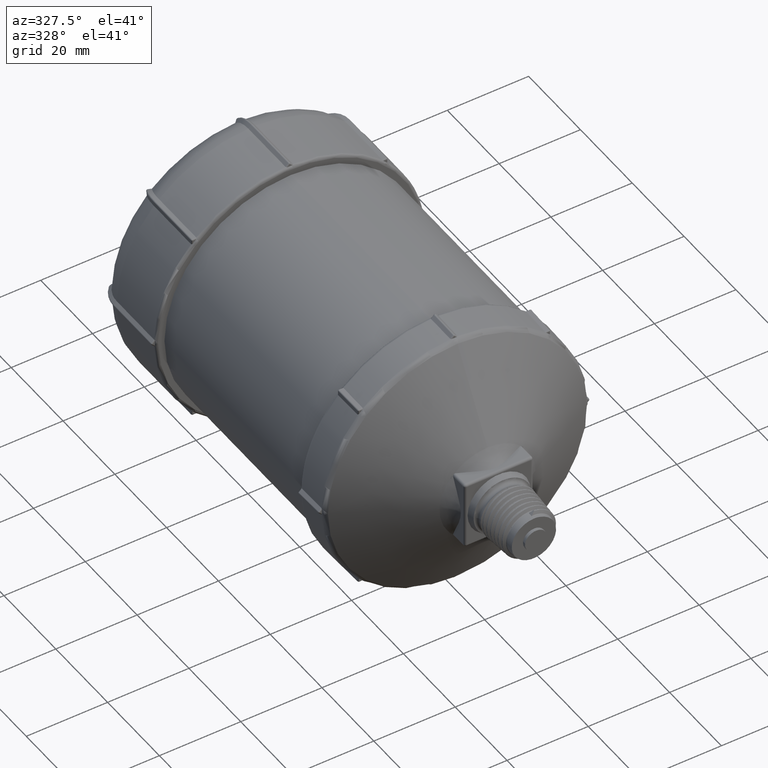
[diagram: clean part render]
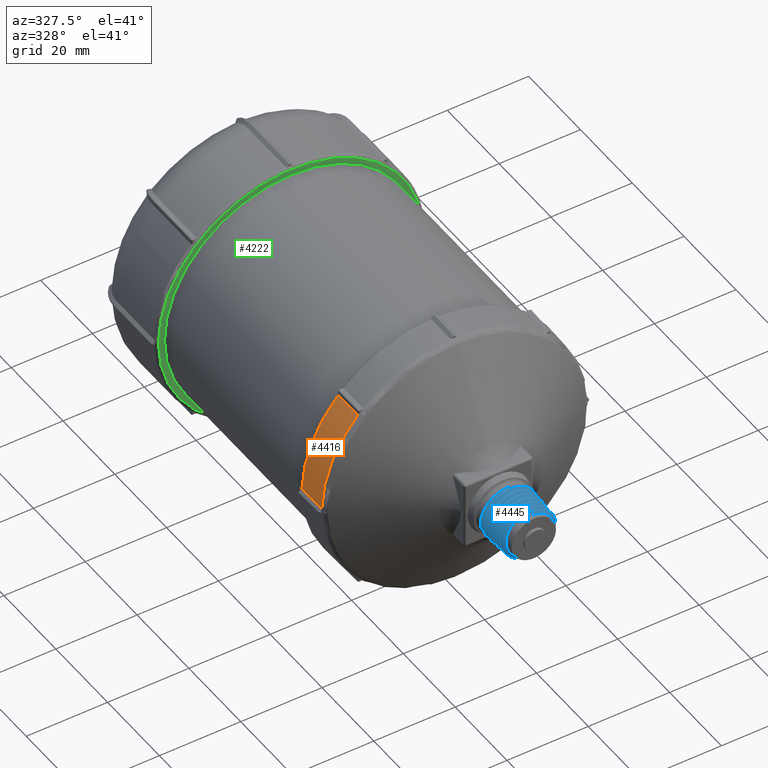
[diagram: same view with three faces highlighted in distinct colors, each labeled with its STEP entity id]
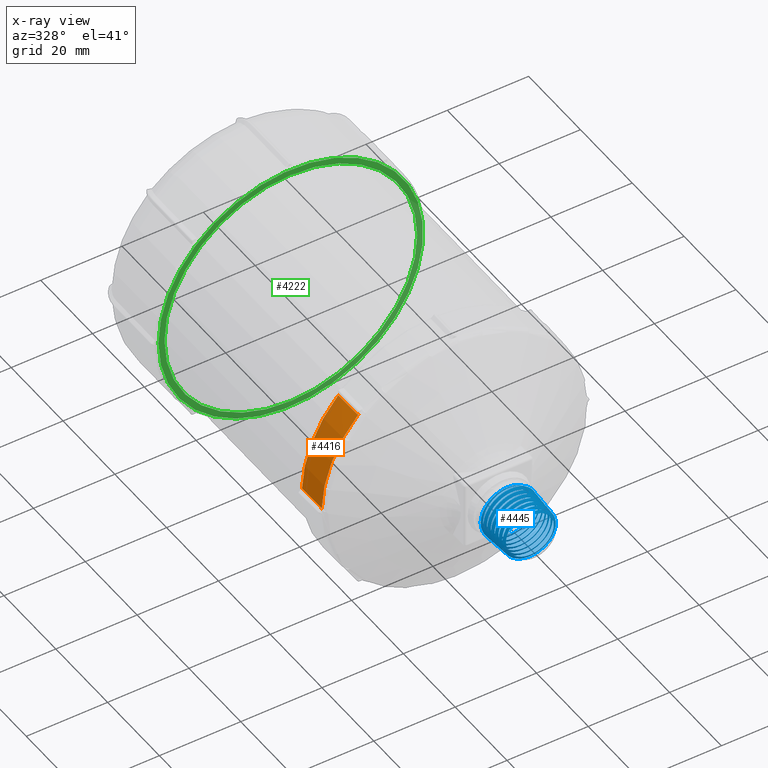
[diagram: x-ray of the same camera — body ghosted, the three highlighted faces saturated]
A machine part, auxiliary view with three faces highlighted in distinct colors.
The next image is the same camera in x-ray (body ghosted, the three faces saturated) — at least one of them is partly hidden behind the body in this view.
Their STEP definitions:

[orange] entity #4416 — the highlighted conical surface has half-angle 1 deg.
#24=(
BOUNDED_CURVE()
B_SPLINE_CURVE(2,(#9670,#9671,#9672),.UNSPECIFIED.,.F.,.F.)
B_SPLINE_CURVE_WITH_KNOTS((3,3),(127.148632175389,127.241116168429),
 .UNSPECIFIED.)
CURVE()
GEOMETRIC_REPRESENTATION_ITEM()
RATIONAL_B_SPLINE_CURVE((1.,1.,1.))
REPRESENTATION_ITEM('')
);
#25=(
BOUNDED_CURVE()
B_SPLINE_CURVE(2,(#9673,#9674,#9675),.UNSPECIFIED.,.F.,.F.)
B_SPLINE_CURVE_WITH_KNOTS((3,3),(126.571083491678,127.148632175389),
 .UNSPECIFIED.)
CURVE()
GEOMETRIC_REPRESENTATION_ITEM()
RATIONAL_B_SPLINE_CURVE((1.,1.,1.))
REPRESENTATION_ITEM('')
);
#30=(
BOUNDED_CURVE()
B_SPLINE_CURVE(2,(#9846,#9847,#9848),.UNSPECIFIED.,.F.,.F.)
B_SPLINE_CURVE_WITH_KNOTS((3,3),(84.7530649599367,84.8455489842055),
 .UNSPECIFIED.)
CURVE()
GEOMETRIC_REPRESENTATION_ITEM()
RATIONAL_B_SPLINE_CURVE((1.,1.,1.))
REPRESENTATION_ITEM('')
);
#31=(
BOUNDED_CURVE()
B_SPLINE_CURVE(2,(#9849,#9850,#9851),.UNSPECIFIED.,.F.,.F.)
B_SPLINE_CURVE_WITH_KNOTS((3,3),(84.8455489842055,85.4230976366884),
 .UNSPECIFIED.)
CURVE()
GEOMETRIC_REPRESENTATION_ITEM()
RATIONAL_B_SPLINE_CURVE((1.,1.,1.))
REPRESENTATION_ITEM('')
);
#356=CIRCLE('',#4743,32.7174550649282);
#414=CIRCLE('',#4876,32.5880965947693);
#687=FACE_OUTER_BOUND('',#950,.T.);
#950=EDGE_LOOP('',(#3550,#3551,#3552,#3553,#3554,#3555,#3556,#3557,#3558,
#3559));
#1147=B_SPLINE_CURVE_WITH_KNOTS('',3,(#9640,#9641,#9642,#9643,#9644,#9645,
#9646,#9647),.UNSPECIFIED.,.F.,.F.,(4,2,2,4),(0.197799578595099,0.199731902600932,
0.210882197361194,0.221889018236159),.UNSPECIFIED.);
#1149=B_SPLINE_CURVE_WITH_KNOTS('',3,(#9660,#9661,#9662,#9663,#9664,#9665),
 .UNSPECIFIED.,.F.,.F.,(4,2,4),(0.110919788151931,0.111062711502142,0.111443304590345),
 .UNSPECIFIED.);
#1150=B_SPLINE_CURVE_WITH_KNOTS('',3,(#9694,#9695,#9696,#9697,#9698,#9699,
#9700,#9701),.UNSPECIFIED.,.F.,.F.,(4,2,2,4),(0.000143473885377559,0.0111502947602624,
0.0223005895205248,0.0242329135231524),.UNSPECIFIED.);
#1154=B_SPLINE_CURVE_WITH_KNOTS('',3,(#9742,#9743,#9744,#9745,#9746,#9747),
 .UNSPECIFIED.,.F.,.F.,(4,2,4),(0.110817161741593,0.111197754829785,0.111340678180081),
 .UNSPECIFIED.);
#1793=VERTEX_POINT('',#8976);
#1794=VERTEX_POINT('',#8991);
#1897=VERTEX_POINT('',#9628);
#1898=VERTEX_POINT('',#9638);
#1900=VERTEX_POINT('',#9659);
#1901=VERTEX_POINT('',#9669);
#1908=VERTEX_POINT('',#9692);
#1909=VERTEX_POINT('',#9693);
#1914=VERTEX_POINT('',#9740);
#1929=VERTEX_POINT('',#9845);
#2303=EDGE_CURVE('',#1793,#1794,#356,.T.);
#2459=EDGE_CURVE('',#1898,#1897,#1147,.F.);
#2463=EDGE_CURVE('',#1794,#1900,#1149,.F.);
#2466=EDGE_CURVE('',#1901,#1900,#24,.T.);
#2467=EDGE_CURVE('',#1898,#1901,#25,.T.);
#2474=EDGE_CURVE('',#1908,#1909,#1150,.T.);
#2486=EDGE_CURVE('',#1793,#1914,#1154,.T.);
#2512=EDGE_CURVE('',#1914,#1929,#30,.T.);
#2513=EDGE_CURVE('',#1929,#1908,#31,.T.);
#2514=EDGE_CURVE('',#1897,#1909,#414,.T.);
#3550=ORIENTED_EDGE('',*,*,#2512,.T.);
#3551=ORIENTED_EDGE('',*,*,#2513,.T.);
#3552=ORIENTED_EDGE('',*,*,#2474,.T.);
#3553=ORIENTED_EDGE('',*,*,#2514,.F.);
#3554=ORIENTED_EDGE('',*,*,#2459,.F.);
#3555=ORIENTED_EDGE('',*,*,#2467,.T.);
#3556=ORIENTED_EDGE('',*,*,#2466,.T.);
#3557=ORIENTED_EDGE('',*,*,#2463,.F.);
#3558=ORIENTED_EDGE('',*,*,#2303,.F.);
#3559=ORIENTED_EDGE('',*,*,#2486,.T.);
#3944=CONICAL_SURFACE('',#4875,32.6366427250276,0.0174532925199432);
#4416=ADVANCED_FACE('',(#687),#3944,.T.);
#4743=AXIS2_PLACEMENT_3D('',#8992,#5567,#5568);
#4875=AXIS2_PLACEMENT_3D('',#9844,#5911,#5912);
#4876=AXIS2_PLACEMENT_3D('',#9852,#5913,#5914);
#5567=DIRECTION('center_axis',(-2.78549348743439E-16,1.,-2.85821632927255E-16));
#5568=DIRECTION('ref_axis',(5.55111512312589E-16,-2.85821632927255E-16,
-1.));
#5911=DIRECTION('center_axis',(-2.78549348743439E-16,1.,-2.85821632927255E-16));
#5912=DIRECTION('ref_axis',(5.55111512312589E-16,-4.32992870657185E-16,
-1.));
#5913=DIRECTION('center_axis',(2.78549348743439E-16,-1.,2.85821632927255E-16));
#5914=DIRECTION('ref_axis',(-5.55111512312589E-16,2.85821632927255E-16,
1.));
#8976=CARTESIAN_POINT('',(-32.704231644031,39.213187692989,0.930106719017144));
#8991=CARTESIAN_POINT('',(-23.7830687372342,39.213187692989,22.4676992007456));
#8992=CARTESIAN_POINT('Origin',(-2.33626410154318E-14,39.2131876887873,
-6.06056609859252E-14));
#9628=CARTESIAN_POINT('',(-23.5707079053401,31.8022458967847,22.5034612562416));
#9638=CARTESIAN_POINT('',(-23.657346578298,32.007951966856,22.4175830077845));
#9640=CARTESIAN_POINT('Ctrl Pts',(-23.5707079053403,31.8022458967849,22.5034612562415));
#9641=CARTESIAN_POINT('Ctrl Pts',(-23.5744311719106,31.8060110633144,22.4996565837896));
#9642=CARTESIAN_POINT('Ctrl Pts',(-23.5780675519858,31.8098877843498,22.4959438484373));
#9643=CARTESIAN_POINT('Ctrl Pts',(-23.6020520973203,31.8368690463868,22.4714801130683));
#9644=CARTESIAN_POINT('Ctrl Pts',(-23.6215977422105,31.86646441979,22.4516723922003));
#9645=CARTESIAN_POINT('Ctrl Pts',(-23.6488950396143,31.9336620464225,22.4246221514667));
#9646=CARTESIAN_POINT('Ctrl Pts',(-23.6567058448024,31.971244369473,22.4173276487976));
#9647=CARTESIAN_POINT('Ctrl Pts',(-23.657346578298,32.0079519668569,22.4175830077854));
#9659=CARTESIAN_POINT('',(-23.7830230457811,39.2079519668561,22.4676144850775));
#9660=CARTESIAN_POINT('Ctrl Pts',(-23.7830230457811,39.2079519668561,22.4676144850784));
#9661=CARTESIAN_POINT('Ctrl Pts',(-23.7830313656185,39.2084286100188,22.4676177934965));
#9662=CARTESIAN_POINT('Ctrl Pts',(-23.7830385464224,39.2089051065485,22.4676223039071));
#9663=CARTESIAN_POINT('Ctrl Pts',(-23.7830606851779,39.2106498955629,22.4676432181901));
#9664=CARTESIAN_POINT('Ctrl Pts',(-23.783068737252,39.2119187020003,22.4676669453323));
#9665=CARTESIAN_POINT('Ctrl Pts',(-23.7830687372342,39.2131876929917,22.4676992006389));
#9669=CARTESIAN_POINT('',(-23.7656593717689,38.2131877489272,22.460708686363));
#9670=CARTESIAN_POINT('Ctrl Pts',(-23.7656593717689,38.2131877489272,22.460708686363));
#9671=CARTESIAN_POINT('Ctrl Pts',(-23.7743398743157,38.7104934067664,22.4641615857203));
#9672=CARTESIAN_POINT('Ctrl Pts',(-23.7830230457811,39.2079519668561,22.4676144850775));
#9673=CARTESIAN_POINT('Ctrl Pts',(-23.657346578298,32.007951966856,22.4175830077845));
#9674=CARTESIAN_POINT('Ctrl Pts',(-23.7114509335838,35.1075884052367,22.4391458470738));
#9675=CARTESIAN_POINT('Ctrl Pts',(-23.7656593717689,38.2131877489272,22.460708686363));
#9692=CARTESIAN_POINT('',(-32.5798951530116,32.0079519668561,0.87664522777797));
#9693=CARTESIAN_POINT('',(-32.5793574516903,31.8022458968037,0.754657342802814));
#9694=CARTESIAN_POINT('Ctrl Pts',(-32.5798951530123,32.0079519668561,0.87664522777737));
#9695=CARTESIAN_POINT('Ctrl Pts',(-32.5792615199407,31.9712443694725,0.87637272684946));
#9696=CARTESIAN_POINT('Ctrl Pts',(-32.5788964389284,31.9336620464222,0.865691661231695));
#9697=CARTESIAN_POINT('Ctrl Pts',(-32.5787217434815,31.86646441979,0.827262148474086));
#9698=CARTESIAN_POINT('Ctrl Pts',(-32.5789070591826,31.8368690463868,0.799435116683917));
#9699=CARTESIAN_POINT('Ctrl Pts',(-32.5792458977054,31.8098877843564,0.765177008870107));
#9700=CARTESIAN_POINT('Ctrl Pts',(-32.5792998890395,31.8060110633272,0.759980399524407));
#9701=CARTESIAN_POINT('Ctrl Pts',(-32.5793574516903,31.8022458968036,0.754657342802719));
#9740=CARTESIAN_POINT('',(-32.7041394322713,39.207951966856,0.930134313304187));
#9742=CARTESIAN_POINT('Ctrl Pts',(-32.7042316439555,39.2131876929917,0.930106719092611));
#9743=CARTESIAN_POINT('Ctrl Pts',(-32.704208836022,39.2119187020003,0.930129527051236));
#9744=CARTESIAN_POINT('Ctrl Pts',(-32.7041863647227,39.2106498955628,0.930140610998165));
#9745=CARTESIAN_POINT('Ctrl Pts',(-32.7041559216272,39.2089051065482,0.9301397451653));
#9746=CARTESIAN_POINT('Ctrl Pts',(-32.7041476546901,39.2084286100191,0.930137856912169));
#9747=CARTESIAN_POINT('Ctrl Pts',(-32.7041394322719,39.207951966856,0.930134313303582));
#9844=CARTESIAN_POINT('Origin',(-2.20730311089473E-14,34.583451836587,-5.92823823246275E-14));
#9845=CARTESIAN_POINT('',(-32.6869783177364,38.2131874130859,0.922739476268058));
#9846=CARTESIAN_POINT('Ctrl Pts',(-32.7041394322713,39.207951966856,0.930134313304187));
#9847=CARTESIAN_POINT('Ctrl Pts',(-32.695557931398,38.7104932387971,0.926435951180263));
#9848=CARTESIAN_POINT('Ctrl Pts',(-32.6869783177364,38.2131874130859,0.922739476268058));
#9849=CARTESIAN_POINT('Ctrl Pts',(-32.6869783177364,38.2131874130859,0.922739476268058));
#9850=CARTESIAN_POINT('Ctrl Pts',(-32.633399936516,35.1075882376385,0.899655553165027));
#9851=CARTESIAN_POINT('Ctrl Pts',(-32.5798951530116,32.0079519668561,0.87664522777797));
#9852=CARTESIAN_POINT('Origin',(-1.730743718718E-14,31.8022458967665,-5.8487453501401E-14));

[blue] entity #4445 — the highlighted face is a freeform B-spline surface patch.
#50=B_SPLINE_SURFACE_WITH_KNOTS('',3,3,((#10897,#10898,#10899,#10900,#10901,
#10902,#10903,#10904,#10905,#10906,#10907,#10908,#10909,#10910,#10911,#10912,
#10913,#10914,#10915,#10916,#10917,#10918,#10919,#10920,#10921,#10922,#10923,
#10924,#10925,#10926,#10927,#10928,#10929,#10930,#10931,#10932,#10933,#10934,
#10935,#10936,#10937,#10938,#10939,#10940,#10941,#10942,#10943,#10944,#10945,
#10946,#10947,#10948,#10949,#10950,#10951,#10952,#10953,#10954,#10955,#10956,
#10957,#10958,#10959,#10960,#10961,#10962,#10963,#10964,#10965,#10966,#10967,
#10968,#10969,#10970,#10971,#10972,#10973,#10974,#10975,#10976,#10977,#10978,
#10979,#10980,#10981,#10982,#10983,#10984,#10985,#10986,#10987,#10988,#10989,
#10990,#10991),(#10992,#10993,#10994,#10995,#10996,#10997,#10998,#10999,
#11000,#11001,#11002,#11003,#11004,#11005,#11006,#11007,#11008,#11009,#11010,
#11011,#11012,#11013,#11014,#11015,#11016,#11017,#11018,#11019,#11020,#11021,
#11022,#11023,#11024,#11025,#11026,#11027,#11028,#11029,#11030,#11031,#11032,
#11033,#11034,#11035,#11036,#11037,#11038,#11039,#11040,#11041,#11042,#11043,
#11044,#11045,#11046,#11047,#11048,#11049,#11050,#11051,#11052,#11053,#11054,
#11055,#11056,#11057,#11058,#11059,#11060,#11061,#11062,#11063,#11064,#11065,
#11066,#11067,#11068,#11069,#11070,#11071,#11072,#11073,#11074,#11075,#11076,
#11077,#11078,#11079,#11080,#11081,#11082,#11083,#11084,#11085,#11086),
(#11087,#11088,#11089,#11090,#11091,#11092,#11093,#11094,#11095,#11096,
#11097,#11098,#11099,#11100,#11101,#11102,#11103,#11104,#11105,#11106,#11107,
#11108,#11109,#11110,#11111,#11112,#11113,#11114,#11115,#11116,#11117,#11118,
#11119,#11120,#11121,#11122,#11123,#11124,#11125,#11126,#11127,#11128,#11129,
#11130,#11131,#11132,#11133,#11134,#11135,#11136,#11137,#11138,#11139,#11140,
#11141,#11142,#11143,#11144,#11145,#11146,#11147,#11148,#11149,#11150,#11151,
#11152,#11153,#11154,#11155,#11156,#11157,#11158,#11159,#11160,#11161,#11162,
#11163,#11164,#11165,#11166,#11167,#11168,#11169,#11170,#11171,#11172,#11173,
#11174,#11175,#11176,#11177,#11178,#11179,#11180,#11181),(#11182,#11183,
#11184,#11185,#11186,#11187,#11188,#11189,#11190,#11191,#11192,#11193,#11194,
#11195,#11196,#11197,#11198,#11199,#11200,#11201,#11202,#11203,#11204,#11205,
#11206,#11207,#11208,#11209,#11210,#11211,#11212,#11213,#11214,#11215,#11216,
#11217,#11218,#11219,#11220,#11221,#11222,#11223,#11224,#11225,#11226,#11227,
#11228,#11229,#11230,#11231,#11232,#11233,#11234,#11235,#11236,#11237,#11238,
#11239,#11240,#11241,#11242,#11243,#11244,#11245,#11246,#11247,#11248,#11249,
#11250,#11251,#11252,#11253,#11254,#11255,#11256,#11257,#11258,#11259,#11260,
#11261,#11262,#11263,#11264,#11265,#11266,#11267,#11268,#11269,#11270,#11271,
#11272,#11273,#11274,#11275,#11276)),.UNSPECIFIED.,.F.,.F.,.F.,(4,4),(4,
1,1,1,1,1,1,1,1,1,1,1,1,1,1,1,1,1,1,1,1,1,1,1,1,1,1,1,1,1,1,1,1,1,1,1,1,
1,1,1,1,1,1,1,1,1,1,1,1,1,1,1,1,1,1,1,1,1,1,1,1,1,1,1,1,1,1,1,1,1,1,1,1,
1,1,1,1,1,1,1,1,1,1,1,1,1,1,1,1,1,1,1,4),(0.0304273349922814,0.109362923246688),
(13.8997634815827,14.397323259999,14.8948830384154,15.3924428168318,15.8900025952482,
16.3875623736646,16.885122152081,17.3826819304974,17.8802417089138,18.3778014873301,
18.8753612657465,19.3729210441629,19.8704808225793,20.3680406009957,20.8656003794121,
21.3631601578285,21.8607199362449,22.3582797146613,22.8558394930776,23.353399271494,
23.8509590499104,24.3485188283268,24.8460786067432,25.3436383851596,25.841198163576,
26.3387579419924,26.8363177204087,27.3338774988251,27.8314372772415,28.3289970556579,
28.8265568340743,29.3241166124907,29.8216763909071,30.3192361693235,30.8167959477398,
31.3143557261562,31.8119155045726,32.309475282989,32.8070350614054,33.3045948398218,
33.8021546182382,34.2997143966546,34.7972741750709,35.2948339534873,35.7923937319037,
36.2899535103201,36.7875132887365,37.2850730671529,37.7826328455693,38.2801926239857,
38.7777524024021,39.2753121808184,39.7728719592348,40.2704317376512,40.7679915160676,
41.265551294484,41.7631110729004,42.2606708513168,42.7582306297332,43.2557904081495,
43.7533501865659,44.2509099649823,44.7484697433987,45.2460295218151,45.7435893002315,
46.2411490786479,46.7387088570643,47.2362686354806,47.733828413897,48.2313881923134,
48.7289479707298,49.2265077491462,49.7240675275626,50.221627305979,50.7191870843954,
51.2167468628118,51.7143066412281,52.2118664196445,52.7094261980609,53.2069859764773,
53.7045457548937,54.2021055333101,54.6996653117265,55.1972250901429,55.6947848685592,
56.1923446469756,56.689904425392,57.1874642038084,57.6850239822248,58.1825837606412,
58.6801435390576,59.177703317474,59.6752630958903),.UNSPECIFIED.);
#716=FACE_OUTER_BOUND('',#979,.T.);
#979=EDGE_LOOP('',(#3759,#3760,#3761,#3762,#3763,#3764));
#1087=B_SPLINE_CURVE_WITH_KNOTS('',3,(#7999,#8000,#8001,#8002,#8003,#8004,
#8005,#8006,#8007,#8008,#8009,#8010,#8011,#8012,#8013,#8014,#8015,#8016,
#8017,#8018,#8019,#8020,#8021,#8022,#8023,#8024,#8025,#8026,#8027,#8028,
#8029,#8030,#8031,#8032,#8033,#8034,#8035,#8036,#8037,#8038),
 .UNSPECIFIED.,.F.,.F.,(4,3,3,3,3,3,3,3,3,3,3,3,3,4),(-0.94731230082242,
-0.891955889875343,-0.877446135628027,-0.827035557258908,-0.772577951429266,
-0.717134141255369,-0.661567346192783,-0.606553065517685,-0.556122102874921,
-0.539986532462891,-0.485836341077821,-0.431087176304899,-0.375922692706761,
-0.354564810962931),.UNSPECIFIED.);
#1090=B_SPLINE_CURVE_WITH_KNOTS('',3,(#8060,#8061,#8062,#8063,#8064,#8065,
#8066,#8067,#8068,#8069,#8070,#8071,#8072,#8073,#8074,#8075,#8076,#8077,
#8078,#8079,#8080,#8081,#8082,#8083,#8084,#8085,#8086,#8087,#8088,#8089,
#8090,#8091,#8092,#8093,#8094,#8095,#8096,#8097,#8098,#8099,#8100,#8101,
#8102,#8103,#8104,#8105,#8106,#8107,#8108,#8109,#8110,#8111,#8112,#8113,
#8114,#8115,#8116,#8117,#8118,#8119,#8120,#8121,#8122,#8123,#8124,#8125,
#8126,#8127,#8128,#8129,#8130,#8131,#8132,#8133,#8134,#8135,#8136,#8137,
#8138,#8139,#8140,#8141,#8142,#8143,#8144,#8145,#8146,#8147,#8148,#8149,
#8150,#8151,#8152,#8153,#8154,#8155,#8156,#8157,#8158,#8159,#8160,#8161,
#8162,#8163,#8164,#8165,#8166,#8167,#8168,#8169,#8170,#8171,#8172,#8173,
#8174,#8175,#8176,#8177,#8178,#8179,#8180,#8181,#8182,#8183,#8184,#8185,
#8186,#8187,#8188,#8189,#8190,#8191,#8192,#8193,#8194,#8195,#8196,#8197,
#8198,#8199,#8200,#8201),.UNSPECIFIED.,.F.,.F.,(4,3,3,3,3,3,3,3,3,3,3,3,
3,3,3,3,3,3,3,3,3,3,3,3,3,3,3,3,3,3,3,3,3,3,3,3,3,3,3,3,3,3,3,3,3,3,3,4),
(-3.12499700580894,-3.07281832862709,-3.02013171757077,-2.99183687365847,
-2.93907864441657,-2.88644258569073,-2.86749873487892,-2.81320083778062,
-2.76053645133309,-2.70753935445891,-2.65468333959222,-2.63893979110282,
-2.58588492020868,-2.53264733276624,-2.49854370258884,-2.44270550421134,
-2.38686730583385,-2.3336299707914,-2.28010085935984,-2.22686301425213,
-2.181252827786,-2.13294831243631,-2.08009884471181,-2.02633991896278,-1.97252880088783,
-1.9193719084701,-1.87697473348848,-1.86114978707708,-1.80820806800097,
-1.75424195597527,-1.70010363750516,-1.646383061588,-1.61870520942483,-1.56431693426149,
-1.53749716578514,-1.4833728620688,-1.42894189151567,-1.37468273313879,
-1.357859642039,-1.30330490899124,-1.24848995573515,-1.20974683069307,-1.15507620165009,
-1.10034588007977,-1.0941059065452,-1.03949757607035,-0.984288823329509,
-0.94731230082242),.UNSPECIFIED.);
#1096=B_SPLINE_CURVE_WITH_KNOTS('',3,(#8750,#8751,#8752,#8753,#8754,#8755,
#8756,#8757,#8758,#8759,#8760,#8761,#8762,#8763,#8764,#8765,#8766,#8767,
#8768,#8769,#8770,#8771,#8772,#8773,#8774,#8775,#8776,#8777,#8778,#8779,
#8780,#8781,#8782,#8783,#8784,#8785,#8786,#8787,#8788,#8789,#8790,#8791,
#8792,#8793,#8794,#8795,#8796,#8797,#8798,#8799,#8800,#8801,#8802,#8803,
#8804,#8805,#8806,#8807,#8808,#8809,#8810,#8811,#8812,#8813,#8814,#8815,
#8816,#8817,#8818,#8819,#8820,#8821,#8822),.UNSPECIFIED.,.F.,.F.,(4,1,1,
1,1,1,1,1,1,1,1,1,1,1,1,1,1,1,1,1,1,1,1,1,1,1,1,1,1,1,1,1,1,1,1,1,1,1,1,
1,1,1,1,1,1,1,1,1,1,1,1,1,1,1,1,1,1,1,1,1,1,1,1,1,1,1,1,1,1,1,4),(-29.9212543102089,
-29.4387531444734,-28.9562519787379,-28.4737508130025,-27.991249647267,
-27.5087484815315,-27.026247315796,-26.5437461500605,-26.0612449843251,
-25.7395775405014,-25.4179100966778,-25.0962426528541,-24.7745752090305,
-24.292074043295,-24.1312403213832,-23.6487391556477,-23.1662379899122,
-22.6837368241767,-22.2012356584412,-21.8795682146176,-21.5579007707939,
-21.2362333269703,-20.9145658831466,-20.592898439323,-20.2712309954993,
-19.9495635516757,-19.627896107852,-19.3062286640284,-18.9845612202047,
-18.6628937763811,-18.3412263325574,-18.0195588887338,-17.6978914449101,
-17.3762240010865,-17.0545565572628,-16.6256666321646,-16.1967767070664,
-15.7678867819682,-15.33899685687,-14.9101069317718,-14.4812170066736,-14.0523270815754,
-13.6234371564772,-13.194547231379,-12.8728797875553,-12.5512123437317,
-12.229544899908,-11.9078774560844,-11.5862100122607,-11.2645425684371,
-10.9428751246134,-10.6212076807898,-10.2995402369661,-9.97787279314245,
-9.6562053493188,-9.33453790549514,-8.90564798039694,-8.47675805529874,
-8.04786813020054,-7.61897820510233,-7.40453324255323,-7.19008828000413,
-6.76119835490593,-6.27869718917045,-5.79619602343497,-5.31369485769949,
-4.83119369196401,-4.34869252622853,-3.86619136049306,-3.38369019475758,
-2.9011890290221),.UNSPECIFIED.);
#1162=B_SPLINE_CURVE_WITH_KNOTS('',3,(#10567,#10568,#10569,#10570,#10571,
#10572,#10573,#10574,#10575,#10576,#10577,#10578,#10579,#10580,#10581,#10582,
#10583,#10584,#10585,#10586,#10587,#10588,#10589,#10590,#10591,#10592,#10593,
#10594,#10595,#10596,#10597,#10598,#10599,#10600,#10601,#10602,#10603,#10604,
#10605,#10606,#10607,#10608,#10609,#10610,#10611,#10612,#10613,#10614,#10615,
#10616,#10617,#10618,#10619,#10620,#10621,#10622,#10623,#10624,#10625,#10626,
#10627,#10628,#10629,#10630,#10631,#10632,#10633,#10634,#10635,#10636,#10637,
#10638,#10639,#10640,#10641,#10642,#10643,#10644,#10645,#10646,#10647,#10648,
#10649,#10650),.UNSPECIFIED.,.F.,.F.,(4,1,1,1,1,1,1,1,1,1,1,1,1,1,1,1,1,
1,1,1,1,1,1,1,1,1,1,1,1,1,1,1,1,1,1,1,1,1,1,1,1,1,1,1,1,1,1,1,1,1,1,1,1,
1,1,1,1,1,1,1,1,1,1,1,1,1,1,1,1,1,1,1,1,1,1,1,1,1,1,1,1,4),(13.8997634815827,
14.2024867067844,14.6969190297346,15.1913513526849,15.6857836756351,16.1802159985853,
16.6746483215356,17.1690806444858,17.663512967436,18.1579452903863,18.6523776133365,
19.1468099362867,19.641242259237,20.1356745821872,20.6301069051375,21.1245392280877,
21.6189715510379,22.1134038739882,22.6078361969384,23.1022685198886,23.5967008428389,
24.0911331657891,24.5855654887393,25.0799978116896,25.5744301346398,26.06886245759,
26.5632947805403,27.0577271034905,27.5521594264407,28.046591749391,28.5410240723412,
29.0354563952915,29.5298887182417,30.0243210411919,30.5187533641422,31.0131856870924,
31.5076180100426,32.0020503329929,32.4964826559431,32.9909149788933,33.4853473018436,
33.9797796247938,34.4742119477441,34.9686442706943,35.4630765936445,35.9575089165948,
36.451941239545,36.9463735624952,37.4408058854455,37.9352382083957,38.4296705313459,
38.9241028542962,39.4185351772464,39.9129675001966,40.4073998231469,40.9018321460971,
41.3962644690474,41.8906967919976,42.3851291149478,42.8795614378981,43.3739937608483,
43.8684260837985,44.3628584067488,44.857290729699,45.3517230526492,45.8461553755995,
46.3405876985497,46.8350200214999,47.3294523444502,47.8238846674004,48.3183169903507,
48.8127493133009,49.3071816362511,49.8016139592014,50.2960462821516,50.7904786051018,
51.2849109280521,51.7793432510023,52.2737755739525,52.7682078969028,53.262640219853,
53.4102167036801),.UNSPECIFIED.);
#1163=B_SPLINE_CURVE_WITH_KNOTS('',3,(#10652,#10653,#10654,#10655,#10656,
#10657,#10658,#10659,#10660,#10661,#10662,#10663,#10664,#10665,#10666,#10667),
 .UNSPECIFIED.,.F.,.F.,(4,1,1,1,1,1,1,1,1,1,1,1,1,4),(53.4102167036801,
53.7570725428032,54.2515048657535,54.7459371887037,55.240369511654,55.7348018346042,
56.2292341575544,56.7236664805047,57.2180988034549,57.7125311264051,58.2069634493554,
58.7013957723056,59.1958280952558,59.6752630958903),.UNSPECIFIED.);
#1173=B_SPLINE_CURVE_WITH_KNOTS('',3,(#11277,#11278,#11279,#11280),
 .UNSPECIFIED.,.F.,.F.,(4,4),(0.,0.102238449442336),.UNSPECIFIED.);
#1761=VERTEX_POINT('',#7966);
#1762=VERTEX_POINT('',#7998);
#1768=VERTEX_POINT('',#8059);
#1772=VERTEX_POINT('',#8724);
#1940=VERTEX_POINT('',#10566);
#1941=VERTEX_POINT('',#10651);
#2267=EDGE_CURVE('',#1762,#1761,#1087,.T.);
#2274=EDGE_CURVE('',#1768,#1762,#1090,.T.);
#2281=EDGE_CURVE('',#1772,#1761,#1096,.T.);
#2548=EDGE_CURVE('',#1768,#1940,#1162,.T.);
#2549=EDGE_CURVE('',#1940,#1941,#1163,.T.);
#2564=EDGE_CURVE('',#1941,#1772,#1173,.T.);
#3759=ORIENTED_EDGE('',*,*,#2281,.F.);
#3760=ORIENTED_EDGE('',*,*,#2564,.F.);
#3761=ORIENTED_EDGE('',*,*,#2549,.F.);
#3762=ORIENTED_EDGE('',*,*,#2548,.F.);
#3763=ORIENTED_EDGE('',*,*,#2274,.T.);
#3764=ORIENTED_EDGE('',*,*,#2267,.T.);
#4445=ADVANCED_FACE('',(#716),#50,.F.);
#7966=CARTESIAN_POINT('',(-4.43130820533541,11.0347232228858,-5.2605555299869));
#7998=CARTESIAN_POINT('',(-6.6640222148405,11.1202459094993,-5.68737710077456E-14));
#7999=CARTESIAN_POINT('Ctrl Pts',(-6.66409674692535,11.1202459094993,-0.000168366293348488));
#8000=CARTESIAN_POINT('Ctrl Pts',(-6.67007267390987,11.1171177488698,-0.183230056588515));
#8001=CARTESIAN_POINT('Ctrl Pts',(-6.66857663074778,11.1140259909982,-0.366561670152881));
#8002=CARTESIAN_POINT('Ctrl Pts',(-6.65948949835467,11.1109698598319,-0.549703653199345));
#8003=CARTESIAN_POINT('Ctrl Pts',(-6.65710762323703,11.1101688015368,-0.597707942511217));
#8004=CARTESIAN_POINT('Ctrl Pts',(-6.65420393035853,11.1093701909516,-0.645699199860595));
#8005=CARTESIAN_POINT('Ctrl Pts',(-6.65077567803133,11.1085740141006,-0.693669116591378));
#8006=CARTESIAN_POINT('Ctrl Pts',(-6.63886505710257,11.1058078931273,-0.860328813613092));
#8007=CARTESIAN_POINT('Ctrl Pts',(-6.62062535806493,11.1030711484072,-1.02673152697812));
#8008=CARTESIAN_POINT('Ctrl Pts',(-6.59615110726781,11.1003631938663,-1.19255072299351));
#8009=CARTESIAN_POINT('Ctrl Pts',(-6.56971203146261,11.0974378411771,-1.37168210191707));
#8010=CARTESIAN_POINT('Ctrl Pts',(-6.53610219065629,11.0945569803239,-1.54941442080087));
#8011=CARTESIAN_POINT('Ctrl Pts',(-6.495570731977,11.0917205231632,-1.72535478019071));
#8012=CARTESIAN_POINT('Ctrl Pts',(-6.45430526562294,11.088832698956,-1.90448134551296));
#8013=CARTESIAN_POINT('Ctrl Pts',(-6.40586518371344,11.0859909012682,-2.08175109753491));
#8014=CARTESIAN_POINT('Ctrl Pts',(-6.35045942858024,11.0831950370803,-2.25675238141378));
#8015=CARTESIAN_POINT('Ctrl Pts',(-6.29493077297166,11.0803929711353,-2.43214185133814));
#8016=CARTESIAN_POINT('Ctrl Pts',(-6.23240534152298,11.0776370426946,-2.6052534531036));
#8017=CARTESIAN_POINT('Ctrl Pts',(-6.16304144277645,11.0749271581185,-2.77566581240611));
#8018=CARTESIAN_POINT('Ctrl Pts',(-6.09436724643198,11.0722442185949,-2.94438371946939));
#8019=CARTESIAN_POINT('Ctrl Pts',(-6.01898965273885,11.0696064118371,-3.11045643080803));
#8020=CARTESIAN_POINT('Ctrl Pts',(-5.93701458807586,11.0670136469708,-3.27345846209511));
#8021=CARTESIAN_POINT('Ctrl Pts',(-5.86186898273617,11.0646368890361,-3.42288056213276));
#8022=CARTESIAN_POINT('Ctrl Pts',(-5.78117878509615,11.0622979806111,-3.56972251861204));
#8023=CARTESIAN_POINT('Ctrl Pts',(-5.69499227847552,11.0599968516945,-3.71363725052038));
#8024=CARTESIAN_POINT('Ctrl Pts',(-5.66741659137244,11.0592605971057,-3.75968329383082));
#8025=CARTESIAN_POINT('Ctrl Pts',(-5.6393114911499,11.0585291223593,-3.8053736715942));
#8026=CARTESIAN_POINT('Ctrl Pts',(-5.61068205112117,11.0578024683028,-3.85069895480628));
#8027=CARTESIAN_POINT('Ctrl Pts',(-5.51460303952036,11.0553638525472,-4.00280840602758));
#8028=CARTESIAN_POINT('Ctrl Pts',(-5.41262265005253,11.0529795293791,-4.15080722470027));
#8029=CARTESIAN_POINT('Ctrl Pts',(-5.30512989645585,11.050651042676,-4.29449159003099));
#8030=CARTESIAN_POINT('Ctrl Pts',(-5.19644812954003,11.0482967998022,-4.43976529620949));
#8031=CARTESIAN_POINT('Ctrl Pts',(-5.08213103250628,11.0459996354768,-4.58062906958762));
#8032=CARTESIAN_POINT('Ctrl Pts',(-4.96253086333507,11.0437611453779,-4.71685233353355));
#8033=CARTESIAN_POINT('Ctrl Pts',(-4.84202342549663,11.0415056744342,-4.85410896641185));
#8034=CARTESIAN_POINT('Ctrl Pts',(-4.71615207061747,11.0393097712809,-4.9866549441761));
#8035=CARTESIAN_POINT('Ctrl Pts',(-4.58523242547866,11.0371750681864,-5.11422657513285));
#8036=CARTESIAN_POINT('Ctrl Pts',(-4.53454462571263,11.0363485810468,-5.16361813343494));
#8037=CARTESIAN_POINT('Ctrl Pts',(-4.48309965400528,11.0355312677034,-5.21226370843825));
#8038=CARTESIAN_POINT('Ctrl Pts',(-4.43091424109864,11.0347232228858,-5.26014662529172));
#8059=CARTESIAN_POINT('',(6.0396765281383,11.6212151721379,-1.46139882643316));
#8060=CARTESIAN_POINT('Ctrl Pts',(6.0396765281383,11.6212151721379,-1.46139882643315));
#8061=CARTESIAN_POINT('Ctrl Pts',(6.08234933850416,11.6163246225182,-1.29355142834793));
#8062=CARTESIAN_POINT('Ctrl Pts',(6.11786006482488,11.611458739257,-1.12409761804304));
#8063=CARTESIAN_POINT('Ctrl Pts',(6.14627365756997,11.6066133515057,-0.953495496277079));
#8064=CARTESIAN_POINT('Ctrl Pts',(6.17496384272847,11.6017207962771,-0.781232646386539));
#8065=CARTESIAN_POINT('Ctrl Pts',(6.19641813618659,11.5968491375281,-0.607798322084432));
#8066=CARTESIAN_POINT('Ctrl Pts',(6.21065177444863,11.591994081417,-0.43365241240488));
#8067=CARTESIAN_POINT('Ctrl Pts',(6.21829581464887,11.5893867196586,-0.340129006105656));
#8068=CARTESIAN_POINT('Ctrl Pts',(6.22385644023064,11.5867841463085,-0.246400233036471));
#8069=CARTESIAN_POINT('Ctrl Pts',(6.22732981687458,11.584185696297,-0.152537037034351));
#8070=CARTESIAN_POINT('Ctrl Pts',(6.23380623363066,11.5793406573279,0.022479161231496));
#8071=CARTESIAN_POINT('Ctrl Pts',(6.23301505329743,11.5745204157926,0.197584514036411));
#8072=CARTESIAN_POINT('Ctrl Pts',(6.22498607274605,11.5697207899079,0.372316419722756));
#8073=CARTESIAN_POINT('Ctrl Pts',(6.21697568464387,11.5649322783608,0.54664370441641));
#8074=CARTESIAN_POINT('Ctrl Pts',(6.20176096782923,11.5601642870969,0.720599992734756));
#8075=CARTESIAN_POINT('Ctrl Pts',(6.17931996834573,11.5554126633167,0.893726087942597));
#8076=CARTESIAN_POINT('Ctrl Pts',(6.1712433958102,11.5537025418869,0.956034607969363));
#8077=CARTESIAN_POINT('Ctrl Pts',(6.16223031949546,11.5519945405345,1.018235542294));
#8078=CARTESIAN_POINT('Ctrl Pts',(6.15227807808291,11.5502884656639,1.08030721270025));
#8079=CARTESIAN_POINT('Ctrl Pts',(6.12375242163195,11.545398420937,1.25822041556059));
#8080=CARTESIAN_POINT('Ctrl Pts',(6.08760050797163,11.5405387108702,1.43453784787896));
#8081=CARTESIAN_POINT('Ctrl Pts',(6.04386070312914,11.5357049983711,1.60876673180305));
#8082=CARTESIAN_POINT('Ctrl Pts',(6.0014367768177,11.5310167044107,1.77775407318552));
#8083=CARTESIAN_POINT('Ctrl Pts',(5.95187453349712,11.5263528673135,1.94477740512083));
#8084=CARTESIAN_POINT('Ctrl Pts',(5.89545252028402,11.5217095297638,2.1094579054098));
#8085=CARTESIAN_POINT('Ctrl Pts',(5.83867405761135,11.5170368576501,2.27517878465705));
#8086=CARTESIAN_POINT('Ctrl Pts',(5.77494859303855,11.5123849449162,2.43852779033454));
#8087=CARTESIAN_POINT('Ctrl Pts',(5.70450915175893,11.5077497587696,2.59910437170155));
#8088=CARTESIAN_POINT('Ctrl Pts',(5.63425722523705,11.5031269118153,2.75925348689043));
#8089=CARTESIAN_POINT('Ctrl Pts',(5.55732667542869,11.4985207025123,2.91664555714218));
#8090=CARTESIAN_POINT('Ctrl Pts',(5.47390310041908,11.493927130189,3.07085918653224));
#8091=CARTESIAN_POINT('Ctrl Pts',(5.44905478180037,11.49255890126,3.11679283775721));
#8092=CARTESIAN_POINT('Ctrl Pts',(5.4236301200484,11.4911917934707,3.16244430322913));
#8093=CARTESIAN_POINT('Ctrl Pts',(5.39763330437529,11.489825701101,3.207801903153));
#8094=CARTESIAN_POINT('Ctrl Pts',(5.31002550108214,11.485222046826,3.3606544579407));
#8095=CARTESIAN_POINT('Ctrl Pts',(5.216270528493,11.4806480959336,3.50956575759167));
#8096=CARTESIAN_POINT('Ctrl Pts',(5.11665121853937,11.4761000649342,3.65415896483096));
#8097=CARTESIAN_POINT('Ctrl Pts',(5.01668882799478,11.4715363708956,3.79925013901071));
#8098=CARTESIAN_POINT('Ctrl Pts',(4.91082130926796,11.4669987755895,3.93999408012446));
#8099=CARTESIAN_POINT('Ctrl Pts',(4.79928622494676,11.4624834563015,4.07599001218296));
#8100=CARTESIAN_POINT('Ctrl Pts',(4.72783762161536,11.459590974006,4.16310806533609));
#8101=CARTESIAN_POINT('Ctrl Pts',(4.65406232196875,11.4567076328861,4.24827729611934));
#8102=CARTESIAN_POINT('Ctrl Pts',(4.57801337646366,11.4538324280517,4.33138616019788));
#8103=CARTESIAN_POINT('Ctrl Pts',(4.45349771395434,11.4491248278026,4.46746109460238));
#8104=CARTESIAN_POINT('Ctrl Pts',(4.32288897051727,11.444439039165,4.59801525011606));
#8105=CARTESIAN_POINT('Ctrl Pts',(4.18663503780136,11.4397706514042,4.72277162670603));
#8106=CARTESIAN_POINT('Ctrl Pts',(4.05038110508545,11.4351022636434,4.847528003296));
#8107=CARTESIAN_POINT('Ctrl Pts',(3.90848123580937,11.4304512767594,4.96648713926927));
#8108=CARTESIAN_POINT('Ctrl Pts',(3.76134668876415,11.4258132800176,5.07932071480776));
#8109=CARTESIAN_POINT('Ctrl Pts',(3.62106545826292,11.4213913145238,5.18689866394521));
#8110=CARTESIAN_POINT('Ctrl Pts',(3.4766067751231,11.4169994229648,5.28846235889316));
#8111=CARTESIAN_POINT('Ctrl Pts',(3.32840950143158,11.4126340691114,5.38382736711081));
#8112=CARTESIAN_POINT('Ctrl Pts',(3.17940000704274,11.408244790184,5.47971503969026));
#8113=CARTESIAN_POINT('Ctrl Pts',(3.02661025175207,11.4038823406483,5.56933632090645));
#8114=CARTESIAN_POINT('Ctrl Pts',(2.87044875921375,11.3995431258131,5.65246630949902));
#8115=CARTESIAN_POINT('Ctrl Pts',(2.71513698344901,11.3952275218155,5.73514396541633));
#8116=CARTESIAN_POINT('Ctrl Pts',(2.55648944336909,11.3909349003537,5.81140113995266));
#8117=CARTESIAN_POINT('Ctrl Pts',(2.39488001269979,11.3866617250969,5.88097387108757));
#8118=CARTESIAN_POINT('Ctrl Pts',(2.2564251925883,11.3830007895374,5.94057856082662));
#8119=CARTESIAN_POINT('Ctrl Pts',(2.1157957499282,11.3793541270552,5.99527647405126));
#8120=CARTESIAN_POINT('Ctrl Pts',(1.97321540518501,11.375719513946,6.04487336390354));
#8121=CARTESIAN_POINT('Ctrl Pts',(1.82221241693093,11.371870193469,6.09740008902327));
#8122=CARTESIAN_POINT('Ctrl Pts',(1.66902086187379,11.3680343879971,6.14420558499121));
#8123=CARTESIAN_POINT('Ctrl Pts',(1.51396872484489,11.3642094560055,6.18524013947379));
#8124=CARTESIAN_POINT('Ctrl Pts',(1.34432779475373,11.3600246377048,6.23013561864414));
#8125=CARTESIAN_POINT('Ctrl Pts',(1.17315327021871,11.3558698880261,6.26794039683628));
#8126=CARTESIAN_POINT('Ctrl Pts',(1.00091250943878,11.3517420530335,6.29871460432613));
#8127=CARTESIAN_POINT('Ctrl Pts',(0.825707750178167,11.3475431843518,6.3300183885772));
#8128=CARTESIAN_POINT('Ctrl Pts',(0.649399093683253,11.3433721646471,6.35404774571718));
#8129=CARTESIAN_POINT('Ctrl Pts',(0.472457598808562,11.3392256743426,6.37081631567177));
#8130=CARTESIAN_POINT('Ctrl Pts',(0.295344318727195,11.3350751583815,6.38760116553999));
#8131=CARTESIAN_POINT('Ctrl Pts',(0.117596249896468,11.3309492194729,6.39711120420836));
#8132=CARTESIAN_POINT('Ctrl Pts',(-0.0603244487060427,11.3268445283617,
6.39930889388234));
#8133=CARTESIAN_POINT('Ctrl Pts',(-0.23608202024223,11.3227897413286,6.40147986445026));
#8134=CARTESIAN_POINT('Ctrl Pts',(-0.41200874493636,11.3187556885802,6.3965151920941));
#8135=CARTESIAN_POINT('Ctrl Pts',(-0.58765858890131,11.3147391608206,6.38432843448717));
#8136=CARTESIAN_POINT('Ctrl Pts',(-0.727754385163361,11.3115356358871,6.37460845141029));
#8137=CARTESIAN_POINT('Ctrl Pts',(-0.867674168459381,11.3083432593506,6.36029324767109));
#8138=CARTESIAN_POINT('Ctrl Pts',(-1.0071869509133,11.3051604028834,6.34131559586956));
#8139=CARTESIAN_POINT('Ctrl Pts',(-1.05926075788262,11.3039723866287,6.3342320974312));
#8140=CARTESIAN_POINT('Ctrl Pts',(-1.11121462774925,11.3027871356933,6.32650740434679));
#8141=CARTESIAN_POINT('Ctrl Pts',(-1.16303686661758,11.3016045746408,6.3181420498124));
#8142=CARTESIAN_POINT('Ctrl Pts',(-1.33640607373777,11.2976483644015,6.29015609408034));
#8143=CARTESIAN_POINT('Ctrl Pts',(-1.50830189429246,11.2937222596018,6.25500383807366));
#8144=CARTESIAN_POINT('Ctrl Pts',(-1.67834563245331,11.2898234357074,6.21296066740576));
#8145=CARTESIAN_POINT('Ctrl Pts',(-1.85167962279208,11.2858491717294,6.17010398466532));
#8146=CARTESIAN_POINT('Ctrl Pts',(-2.02308980892947,11.2819032546115,6.12008703246976));
#8147=CARTESIAN_POINT('Ctrl Pts',(-2.19217218954419,11.2779826926667,6.06314755963998));
#8148=CARTESIAN_POINT('Ctrl Pts',(-2.36179411385561,11.2740496201665,6.00602639233946));
#8149=CARTESIAN_POINT('Ctrl Pts',(-2.52907402492574,11.2701420649149,5.94193821070735));
#8150=CARTESIAN_POINT('Ctrl Pts',(-2.69359118817731,11.2662570064938,5.87107213534779));
#8151=CARTESIAN_POINT('Ctrl Pts',(-2.85683890269602,11.2624019259935,5.800752877401));
#8152=CARTESIAN_POINT('Ctrl Pts',(-3.0173669739001,11.2585689964827,5.72375960960935));
#8153=CARTESIAN_POINT('Ctrl Pts',(-3.17474199734012,11.2547552669239,5.64023134183711));
#8154=CARTESIAN_POINT('Ctrl Pts',(-3.25582457247232,11.2527903616503,5.59719600561118));
#8155=CARTESIAN_POINT('Ctrl Pts',(-3.33606974738931,11.2508305530125,5.5524252334059));
#8156=CARTESIAN_POINT('Ctrl Pts',(-3.41541506143375,11.2488754374115,5.50593364064963));
#8157=CARTESIAN_POINT('Ctrl Pts',(-3.57133231786426,11.2450335437322,5.41457548450718));
#8158=CARTESIAN_POINT('Ctrl Pts',(-3.72313009031344,11.2412256299064,5.31695371906967));
#8159=CARTESIAN_POINT('Ctrl Pts',(-3.87040665613915,11.2374490752458,5.21330908986948));
#8160=CARTESIAN_POINT('Ctrl Pts',(-3.9430311948945,11.2355867929555,5.16220018908861));
#8161=CARTESIAN_POINT('Ctrl Pts',(-4.01455613901766,11.2337321360887,5.10962596264677));
#8162=CARTESIAN_POINT('Ctrl Pts',(-4.08493176096056,11.2318847904032,5.05561088784623));
#8163=CARTESIAN_POINT('Ctrl Pts',(-4.22695504276569,11.2281567082968,4.94660441687896));
#8164=CARTESIAN_POINT('Ctrl Pts',(-4.36429949654809,11.2244584019017,4.83173272237183));
#8165=CARTESIAN_POINT('Ctrl Pts',(-4.49672992754828,11.2207872885028,4.71139735605248));
#8166=CARTESIAN_POINT('Ctrl Pts',(-4.62991070577846,11.2170953746749,4.59038017281155));
#8167=CARTESIAN_POINT('Ctrl Pts',(-4.75812210233044,11.2134309628657,4.46383672756971));
#8168=CARTESIAN_POINT('Ctrl Pts',(-4.88109181437016,11.2097914262101,4.33213430898104));
#8169=CARTESIAN_POINT('Ctrl Pts',(-5.00367337066648,11.2061633778066,4.20084761105517));
#8170=CARTESIAN_POINT('Ctrl Pts',(-5.12104672859448,11.202560047767,4.06443390659472));
#8171=CARTESIAN_POINT('Ctrl Pts',(-5.23290246014774,11.1989788340228,3.92322423400632));
#8172=CARTESIAN_POINT('Ctrl Pts',(-5.26758341020752,11.1978684761244,3.87944207340543));
#8173=CARTESIAN_POINT('Ctrl Pts',(-5.30173362808483,11.1967602442975,3.83519866385245));
#8174=CARTESIAN_POINT('Ctrl Pts',(-5.33534300723049,11.1956540609858,3.79050335654096));
#8175=CARTESIAN_POINT('Ctrl Pts',(-5.44433312660368,11.1920668762698,3.64556325341707));
#8176=CARTESIAN_POINT('Ctrl Pts',(-5.54718927450503,11.188515937065,3.49647078965704));
#8177=CARTESIAN_POINT('Ctrl Pts',(-5.64368598818551,11.1849991583819,3.34363871716033));
#8178=CARTESIAN_POINT('Ctrl Pts',(-5.74064298081035,11.1814656050427,3.19007765211755));
#8179=CARTESIAN_POINT('Ctrl Pts',(-5.83118020467093,11.1779665388865,3.03274068823489));
#8180=CARTESIAN_POINT('Ctrl Pts',(-5.91503306305419,11.1744998449455,2.87200833559355));
#8181=CARTESIAN_POINT('Ctrl Pts',(-5.97430013498438,11.1720495909754,2.75840295482092));
#8182=CARTESIAN_POINT('Ctrl Pts',(-6.03022720217174,11.1696155090011,2.64310054936857));
#8183=CARTESIAN_POINT('Ctrl Pts',(-6.08270811404116,11.1671968522463,2.52622624615837));
#8184=CARTESIAN_POINT('Ctrl Pts',(-6.15676420687141,11.1637838728835,2.36130429759276));
#8185=CARTESIAN_POINT('Ctrl Pts',(-6.223960392871,11.160401608498,2.19325291412278));
#8186=CARTESIAN_POINT('Ctrl Pts',(-6.28424071120438,11.1570479607839,2.02251904103035));
#8187=CARTESIAN_POINT('Ctrl Pts',(-6.3445868470455,11.1536906513651,1.85159875090621));
#8188=CARTESIAN_POINT('Ctrl Pts',(-6.39800217824026,11.1503620211424,1.67798942944553));
#8189=CARTESIAN_POINT('Ctrl Pts',(-6.44438048401815,11.1470599649296,1.50212576939253));
#8190=CARTESIAN_POINT('Ctrl Pts',(-6.44966821835496,11.1466834872699,1.48207500862707));
#8191=CARTESIAN_POINT('Ctrl Pts',(-6.45486442331726,11.1463073550455,1.4619949356064));
#8192=CARTESIAN_POINT('Ctrl Pts',(-6.45996889857015,11.1459315651362,1.44188618948601));
#8193=CARTESIAN_POINT('Ctrl Pts',(-6.50463836232825,11.1426430128558,1.2659137610691));
#8194=CARTESIAN_POINT('Ctrl Pts',(-6.54210463385035,11.1393942638567,1.08846693164041));
#8195=CARTESIAN_POINT('Ctrl Pts',(-6.57238246225963,11.1361838527567,0.910015473538788));
#8196=CARTESIAN_POINT('Ctrl Pts',(-6.60299319742846,11.1329381429706,0.729601929654417));
#8197=CARTESIAN_POINT('Ctrl Pts',(-6.6262567640808,11.1297316187739,0.548160893507244));
#8198=CARTESIAN_POINT('Ctrl Pts',(-6.64214010714484,11.1265627659149,0.366155492851898));
#8199=CARTESIAN_POINT('Ctrl Pts',(-6.65277810860545,11.1244404002891,0.244255858108559));
#8200=CARTESIAN_POINT('Ctrl Pts',(-6.66010451569321,11.1223349331299,0.122102612383654));
#8201=CARTESIAN_POINT('Ctrl Pts',(-6.66409674692535,11.1202459094993,-0.000168366293372129));
#8724=CARTESIAN_POINT('',(0.777455203401367,2.20195961591949,6.27821638814291));
#8750=CARTESIAN_POINT('Ctrl Pts',(0.777455203401368,2.20195961591949,6.27821638814291));
#8751=CARTESIAN_POINT('Ctrl Pts',(2.38864815163745,2.25667510206442,6.08214215360883));
#8752=CARTESIAN_POINT('Ctrl Pts',(5.45748270223902,2.36650869472868,4.3856960732738));
#8753=CARTESIAN_POINT('Ctrl Pts',(6.97806809464966,2.53066729733495,-0.655680872596425));
#8754=CARTESIAN_POINT('Ctrl Pts',(4.5659424944428,2.69467894984732,-5.32840571587689));
#8755=CARTESIAN_POINT('Ctrl Pts',(-0.415935028835742,2.85836904027382,-7.01524222740252));
#8756=CARTESIAN_POINT('Ctrl Pts',(-5.17111512764877,3.02181623180458,-4.77003355617654));
#8757=CARTESIAN_POINT('Ctrl Pts',(-7.04356147492525,3.18499871251586,0.139030298878795));
#8758=CARTESIAN_POINT('Ctrl Pts',(-4.9951521712539,3.34789804524408,4.98377317587999));
#8759=CARTESIAN_POINT('Ctrl Pts',(-0.707075194880618,3.49251795887318,6.82355069873457));
#8760=CARTESIAN_POINT('Ctrl Pts',(3.11438898469366,3.61885946407574,5.92515187342865));
#8761=CARTESIAN_POINT('Ctrl Pts',(5.60873529277401,3.72700102741149,3.67270495314655));
#8762=CARTESIAN_POINT('Ctrl Pts',(6.68981068998201,3.83515205412331,0.491003935859999));
#8763=CARTESIAN_POINT('Ctrl Pts',(6.0015840340636,3.9610413766319,-3.37969195008239));
#8764=CARTESIAN_POINT('Ctrl Pts',(3.47460810709698,4.06890196446151,-5.77903995482163));
#8765=CARTESIAN_POINT('Ctrl Pts',(-0.237236465295646,4.194475291496,-6.7440551393114));
#8766=CARTESIAN_POINT('Ctrl Pts',(-4.18151478408497,4.32001640227031,-5.7486131918941));
#8767=CARTESIAN_POINT('Ctrl Pts',(-6.99674326075295,4.48112022142879,-1.31075252074844));
#8768=CARTESIAN_POINT('Ctrl Pts',(-5.99949948658365,4.64208757180663,3.84035898388725));
#8769=CARTESIAN_POINT('Ctrl Pts',(-2.22933313420116,4.78475988219839,6.56785761478019));
#8770=CARTESIAN_POINT('Ctrl Pts',(1.69776470825966,4.90964329739454,6.55392581543763));
#8771=CARTESIAN_POINT('Ctrl Pts',(4.64025821257669,5.01638436575207,4.94539512387323));
#8772=CARTESIAN_POINT('Ctrl Pts',(6.45018719136154,5.12321121354076,2.10945313698631));
#8773=CARTESIAN_POINT('Ctrl Pts',(6.67890053751011,5.22975246710537,-1.23909893650855));
#8774=CARTESIAN_POINT('Ctrl Pts',(5.27327260953181,5.33632360391195,-4.29186472225534));
#8775=CARTESIAN_POINT('Ctrl Pts',(2.58160179844327,5.44264295836457,-6.29680095201217));
#8776=CARTESIAN_POINT('Ctrl Pts',(-0.745770388102388,5.54901811233442,-6.77153559246353));
#8777=CARTESIAN_POINT('Ctrl Pts',(-3.89058579770459,5.65513849619314,-5.59815966241398));
#8778=CARTESIAN_POINT('Ctrl Pts',(-6.09735805637617,5.76122251485194,-3.067061063372));
#8779=CARTESIAN_POINT('Ctrl Pts',(-6.82691056459274,5.86720209676191,0.211023709679264));
#8780=CARTESIAN_POINT('Ctrl Pts',(-5.90992761406972,5.97302080888966,3.43963168840455));
#8781=CARTESIAN_POINT('Ctrl Pts',(-3.56199215144547,6.07883292410988,5.84279410078452));
#8782=CARTESIAN_POINT('Ctrl Pts',(-0.360374438210478,6.1843971412584,6.84004379396824));
#8783=CARTESIAN_POINT('Ctrl Pts',(2.93782832519916,6.28999453303483,6.19603042568565));
#8784=CARTESIAN_POINT('Ctrl Pts',(5.52654318378326,6.39539354321529,4.0643728023375));
#8785=CARTESIAN_POINT('Ctrl Pts',(6.94817088827676,6.51240261217717,0.614744452161859));
#8786=CARTESIAN_POINT('Ctrl Pts',(6.16915801294505,6.64104276556444,-3.51291115906522));
#8787=CARTESIAN_POINT('Ctrl Pts',(2.74359713774158,6.78104840071025,-6.55484454494322));
#8788=CARTESIAN_POINT('Ctrl Pts',(-1.82862947096482,6.92104643493525,-6.87629902949263));
#8789=CARTESIAN_POINT('Ctrl Pts',(-5.6431624151903,7.06067209808817,-4.34408726049485));
#8790=CARTESIAN_POINT('Ctrl Pts',(-7.130360974397,7.20021168118008,-0.01345481775592));
#8791=CARTESIAN_POINT('Ctrl Pts',(-5.67592441295417,7.33956293694917,4.33005701784516));
#8792=CARTESIAN_POINT('Ctrl Pts',(-1.88405569077216,7.47870917685406,6.89361586601586));
#8793=CARTESIAN_POINT('Ctrl Pts',(2.68681281099676,7.61765068263019,6.63124871557369));
#8794=CARTESIAN_POINT('Ctrl Pts',(5.87097458951505,7.74495262939029,3.89890639380577));
#8795=CARTESIAN_POINT('Ctrl Pts',(6.94027748340098,7.86042127506514,0.328647329490984));
#8796=CARTESIAN_POINT('Ctrl Pts',(6.29513807036874,7.96436140658246,-2.96177577722658));
#8797=CARTESIAN_POINT('Ctrl Pts',(4.18283016942872,8.06806652581404,-5.56486555773452));
#8798=CARTESIAN_POINT('Ctrl Pts',(1.09993052838744,8.17174525141454,-6.88172781967759));
#8799=CARTESIAN_POINT('Ctrl Pts',(-2.24246964992117,8.27535193790773,-6.60419423737028));
#8800=CARTESIAN_POINT('Ctrl Pts',(-5.06805719966421,8.37878886433054,-4.8015495228217));
#8801=CARTESIAN_POINT('Ctrl Pts',(-6.72689567782415,8.48217989134571,-1.88803238600741));
#8802=CARTESIAN_POINT('Ctrl Pts',(-6.83933753354683,8.58543441385424,1.46198358795197));
#8803=CARTESIAN_POINT('Ctrl Pts',(-5.37844119540955,8.68862803071048,4.47878482709638));
#8804=CARTESIAN_POINT('Ctrl Pts',(-2.68338130450168,8.79168956654602,6.47237042100812));
#8805=CARTESIAN_POINT('Ctrl Pts',(0.627430982853649,8.89464577183306,6.98211333599991));
#8806=CARTESIAN_POINT('Ctrl Pts',(4.15410982640155,9.00896851905495,5.78341827112042));
#8807=CARTESIAN_POINT('Ctrl Pts',(6.78820748889176,9.13453293756328,2.52732373134503));
#8808=CARTESIAN_POINT('Ctrl Pts',(6.95589817576526,9.27141785963035,-2.04161781578819));
#8809=CARTESIAN_POINT('Ctrl Pts',(4.36024287843682,9.40807290998539,-5.80208935292906));
#8810=CARTESIAN_POINT('Ctrl Pts',(0.75487279320942,9.52179940312427,-7.0196480238944));
#8811=CARTESIAN_POINT('Ctrl Pts',(-2.13975734164049,9.61267848146819,-6.56371504809621));
#8812=CARTESIAN_POINT('Ctrl Pts',(-4.75275792108716,9.70361292759873,-5.23371914579319));
#8813=CARTESIAN_POINT('Ctrl Pts',(-7.07536718977246,9.82266240743084,-1.98325906348015));
#8814=CARTESIAN_POINT('Ctrl Pts',(-6.78037897853009,9.96997102814668,3.02280838418584));
#8815=CARTESIAN_POINT('Ctrl Pts',(-3.13137086308086,10.1227501343868,6.73937416164384));
#8816=CARTESIAN_POINT('Ctrl Pts',(2.05821928839324,10.2752795687967,7.14944715728537));
#8817=CARTESIAN_POINT('Ctrl Pts',(6.24650695941794,10.4276589412518,4.0590264418502));
#8818=CARTESIAN_POINT('Ctrl Pts',(7.38838528074467,10.5796570559027,-1.01897397418585));
#8819=CARTESIAN_POINT('Ctrl Pts',(4.93193334313367,10.7316591702648,-5.60254380735479));
#8820=CARTESIAN_POINT('Ctrl Pts',(0.0812861330416533,10.8830569679834,-7.47832778571699));
#8821=CARTESIAN_POINT('Ctrl Pts',(-3.19216579390118,10.9845706140253,-6.30026735140911));
#8822=CARTESIAN_POINT('Ctrl Pts',(-4.43130820533551,11.0347232228858,-5.26055552998681));
#10566=CARTESIAN_POINT('',(-0.0178655215181767,3.19491470044672,5.68675341232744));
#10567=CARTESIAN_POINT('Ctrl Pts',(6.03924932168912,11.6212151721379,-1.46139742074866));
#10568=CARTESIAN_POINT('Ctrl Pts',(6.18509151764583,11.599694817841,-0.851447649743675));
#10569=CARTESIAN_POINT('Ctrl Pts',(6.32818522685659,11.5430256613384,0.812218392616821));
#10570=CARTESIAN_POINT('Ctrl Pts',(5.475037313194,11.4512077026299,3.43202875474649));
#10571=CARTESIAN_POINT('Ctrl Pts',(3.18734389990155,11.3457612960125,5.61310817923549));
#10572=CARTESIAN_POINT('Ctrl Pts',(0.141865484842673,11.2403148893951,6.44649890866261));
#10573=CARTESIAN_POINT('Ctrl Pts',(-2.9310665379713,11.1348684827777,5.73565461238452));
#10574=CARTESIAN_POINT('Ctrl Pts',(-5.29613407981892,11.0294220761603,3.65395397990046));
#10575=CARTESIAN_POINT('Ctrl Pts',(-6.38894658425783,10.9239756695429,0.702412484221061));
#10576=CARTESIAN_POINT('Ctrl Pts',(-5.95074292230377,10.8185292629255,-2.41089021480658));
#10577=CARTESIAN_POINT('Ctrl Pts',(-4.08964378956393,10.7130828563081,-4.94068290879567));
#10578=CARTESIAN_POINT('Ctrl Pts',(-1.25400231634387,10.6076364496907,-6.28290608909757));
#10579=CARTESIAN_POINT('Ctrl Pts',(1.87560668262195,10.5021900430733,-6.11894774716079));
#10580=CARTESIAN_POINT('Ctrl Pts',(4.54972769153441,10.3967436364559,-4.49126766511727));
#10581=CARTESIAN_POINT('Ctrl Pts',(6.12949919310084,10.2912972298385,-1.79246395984703));
#10582=CARTESIAN_POINT('Ctrl Pts',(6.23927967023983,10.1858508232211,1.3294175290436));
#10583=CARTESIAN_POINT('Ctrl Pts',(4.85596384808869,10.0804044166037,4.12649315738774));
#10584=CARTESIAN_POINT('Ctrl Pts',(2.31375284752429,9.97495800998632,5.9302058779078));
#10585=CARTESIAN_POINT('Ctrl Pts',(-0.776580901538791,9.86951160336892,
6.31112302795905));
#10586=CARTESIAN_POINT('Ctrl Pts',(-3.67443190671135,9.76406519675152,5.18117304907276));
#10587=CARTESIAN_POINT('Ctrl Pts',(-5.68684933654199,9.65861879013412,2.81398210755863));
#10588=CARTESIAN_POINT('Ctrl Pts',(-6.33423896382561,9.55317238351672,-0.221378764537191));
#10589=CARTESIAN_POINT('Ctrl Pts',(-5.46465591747445,9.44772597689933,-3.19719612952357));
#10590=CARTESIAN_POINT('Ctrl Pts',(-3.28945169989285,9.34227957028192,-5.4015798550822));
#10591=CARTESIAN_POINT('Ctrl Pts',(-0.331916172706543,9.23683316366454,
-6.30876481975276));
#10592=CARTESIAN_POINT('Ctrl Pts',(2.69860813724246,9.13138675704713,-5.70450830032253));
#10593=CARTESIAN_POINT('Ctrl Pts',(5.0768561772586,9.02594035042975,-3.73667573691307));
#10594=CARTESIAN_POINT('Ctrl Pts',(6.2352106695286,8.92049394381233,-0.879073344398352));
#10595=CARTESIAN_POINT('Ctrl Pts',(5.89917379091568,8.81504753719496,2.18262981377592));
#10596=CARTESIAN_POINT('Ctrl Pts',(4.15240798848605,8.70960113057754,4.71542457770732));
#10597=CARTESIAN_POINT('Ctrl Pts',(1.41593667717261,8.60415472396015,6.11445300570097));
#10598=CARTESIAN_POINT('Ctrl Pts',(-1.65333117771564,8.49870831734276,6.04745350388053));
#10599=CARTESIAN_POINT('Ctrl Pts',(-4.32029584656082,8.39326191072536,4.53366537642818));
#10600=CARTESIAN_POINT('Ctrl Pts',(-5.94772563322585,8.28781550410795,1.93845615680372));
#10601=CARTESIAN_POINT('Ctrl Pts',(-6.14851302497705,8.18236909749057,-1.11485830702075));
#10602=CARTESIAN_POINT('Ctrl Pts',(-4.87774928546643,8.07692269087315,-3.8947203756569));
#10603=CARTESIAN_POINT('Ctrl Pts',(-2.44271837466935,7.97147628425577,-5.73660785849737));
#10604=CARTESIAN_POINT('Ctrl Pts',(0.571400879649021,7.86602987763836,-6.20188649919274));
#10605=CARTESIAN_POINT('Ctrl Pts',(3.44216155090126,7.76058347102097,-5.18226453936477));
#10606=CARTESIAN_POINT('Ctrl Pts',(5.48301008249759,7.65513706440358,-2.92497582354694));
#10607=CARTESIAN_POINT('Ctrl Pts',(6.20747784329967,7.54969065778617,0.0271595840885153));
#10608=CARTESIAN_POINT('Ctrl Pts',(5.445135909874,7.44424425116879,2.96626766768292));
#10609=CARTESIAN_POINT('Ctrl Pts',(3.38167472351231,7.33879784455137,5.18915692606139));
#10610=CARTESIAN_POINT('Ctrl Pts',(0.513686346796729,7.23335143793399,6.16555909159552));
#10611=CARTESIAN_POINT('Ctrl Pts',(-2.47084259636179,7.12790503131658,5.66462204609192));
#10612=CARTESIAN_POINT('Ctrl Pts',(-4.85756803363979,7.02245862469919,3.80948117152043));
#10613=CARTESIAN_POINT('Ctrl Pts',(-6.07676590576932,6.91701221808179,1.04701122770722));
#10614=CARTESIAN_POINT('Ctrl Pts',(-5.83932673256549,6.81156581146439,-1.95981543314289));
#10615=CARTESIAN_POINT('Ctrl Pts',(-4.20530542255872,6.70611940484699,-4.49103671908023));
#10616=CARTESIAN_POINT('Ctrl Pts',(-1.56877439220634,6.6006729982296,-5.9420903016777));
#10617=CARTESIAN_POINT('Ctrl Pts',(1.4372093780704,6.49522659161219,-5.96820740579973));
#10618=CARTESIAN_POINT('Ctrl Pts',(4.09260663269244,6.38978018499481,-4.56632412598316));
#10619=CARTESIAN_POINT('Ctrl Pts',(5.76287066711734,6.28433377837741,-2.07505080331215));
#10620=CARTESIAN_POINT('Ctrl Pts',(6.05058088058698,6.17888737176001,0.907110086369472));
#10621=CARTESIAN_POINT('Ctrl Pts',(4.89000035764449,6.07344096514261,3.66554664312715));
#10622=CARTESIAN_POINT('Ctrl Pts',(2.56206057151107,5.96799455852522,5.54077916527224));
#10623=CARTESIAN_POINT('Ctrl Pts',(-0.373633741914647,5.86254815190782,
6.08612625956185));
#10624=CARTESIAN_POINT('Ctrl Pts',(-3.21332414025688,5.75710174529042,5.17410130654619));
#10625=CARTESIAN_POINT('Ctrl Pts',(-5.27780663824272,5.65165533867302,3.02619715827186));
#10626=CARTESIAN_POINT('Ctrl Pts',(-6.07488502145314,5.54620893205562,0.159104897799652));
#10627=CARTESIAN_POINT('Ctrl Pts',(-5.41671349389928,5.44076252543822,-2.7395769762269));
#10628=CARTESIAN_POINT('Ctrl Pts',(-3.46405405475653,5.33531611882083,-4.97624514377931));
#10629=CARTESIAN_POINT('Ctrl Pts',(-0.687024237162606,5.22986971220342,
-6.01725830546869));
#10630=CARTESIAN_POINT('Ctrl Pts',(2.24808427106207,5.12442330558604,-5.6162554223974));
#10631=CARTESIAN_POINT('Ctrl Pts',(4.63866827590728,5.01897689896863,-3.87244973860992));
#10632=CARTESIAN_POINT('Ctrl Pts',(5.91400143093871,4.91353049235125,-1.20610711367669));
#10633=CARTESIAN_POINT('Ctrl Pts',(5.77148757416869,4.80808408573384,1.74273631660995));
#10634=CARTESIAN_POINT('Ctrl Pts',(4.24845072634265,4.70263767911645,4.26790943640469));
#10635=CARTESIAN_POINT('Ctrl Pts',(1.71243136534345,4.59719127249905,5.76621571259666));
#10636=CARTESIAN_POINT('Ctrl Pts',(-1.22750381815725,4.49174486588165,5.88151969699542));
#10637=CARTESIAN_POINT('Ctrl Pts',(-3.86703823891618,4.38629845926426,4.58939255479598));
#10638=CARTESIAN_POINT('Ctrl Pts',(-5.57533765263557,4.28085205264685,2.20219946162502));
#10639=CARTESIAN_POINT('Ctrl Pts',(-5.94581533965109,4.17540564602945,-0.706406716669069));
#10640=CARTESIAN_POINT('Ctrl Pts',(-4.89289854277584,4.06995923941206,-3.43933524088213));
#10641=CARTESIAN_POINT('Ctrl Pts',(-2.67176697332576,3.96451283279466,-5.34312561050541));
#10642=CARTESIAN_POINT('Ctrl Pts',(0.183482834647231,3.85906642617726,-5.9641936189741));
#10643=CARTESIAN_POINT('Ctrl Pts',(2.98826521349818,3.75362001955987,-5.15689620192787));
#10644=CARTESIAN_POINT('Ctrl Pts',(5.07164406394271,3.64817361294247,-3.1176696676733));
#10645=CARTESIAN_POINT('Ctrl Pts',(5.93682823564435,3.54272720632507,-0.337243410664835));
#10646=CARTESIAN_POINT('Ctrl Pts',(5.37963116004451,3.43728079970768,2.51744916813807));
#10647=CARTESIAN_POINT('Ctrl Pts',(3.53664907620198,3.33183439309028,4.76324559629017));
#10648=CARTESIAN_POINT('Ctrl Pts',(1.47962192649487,3.25104569333663,5.60678511302199));
#10649=CARTESIAN_POINT('Ctrl Pts',(0.262028671185664,3.20540579578878,5.68835218558799));
#10650=CARTESIAN_POINT('Ctrl Pts',(-0.0177307740510031,3.19491470044672,
5.68656924838422));
#10651=CARTESIAN_POINT('',(0.0840296579167746,1.8587831437395,5.60255731516226));
#10652=CARTESIAN_POINT('Ctrl Pts',(-0.0177307740510031,3.19491470044672,
5.68656924838422));
#10653=CARTESIAN_POINT('Ctrl Pts',(-0.675262344215709,3.17025699358298,
5.6823787285678));
#10654=CARTESIAN_POINT('Ctrl Pts',(-2.26841318021569,3.11045048451343,5.3971080221027));
#10655=CARTESIAN_POINT('Ctrl Pts',(-4.420551138148,3.01549517323809,3.92567636875483));
#10656=CARTESIAN_POINT('Ctrl Pts',(-5.74730856882026,2.91004876662068,1.35625694757802));
#10657=CARTESIAN_POINT('Ctrl Pts',(-5.69595284927864,2.80460236000329,-1.53166812366302));
#10658=CARTESIAN_POINT('Ctrl Pts',(-4.28197150828613,2.69915595338589,-4.04642879424088));
#10659=CARTESIAN_POINT('Ctrl Pts',(-1.84684231427329,2.59370954676849,-5.58722397535472));
#10660=CARTESIAN_POINT('Ctrl Pts',(1.02446972604639,2.4882631401511,-5.78771791925271));
#10661=CARTESIAN_POINT('Ctrl Pts',(3.64394965325262,2.3828167335337,-4.60301629937471));
#10662=CARTESIAN_POINT('Ctrl Pts',(5.38555289691576,2.2773703269163,-2.31990289471449));
#10663=CARTESIAN_POINT('Ctrl Pts',(5.83451069133476,2.17192392029891,0.513033965700764));
#10664=CARTESIAN_POINT('Ctrl Pts',(4.88672843150558,2.06647751368151,3.21630909208892));
#10665=CARTESIAN_POINT('Ctrl Pts',(2.79304094027874,1.96209725482837,5.12483848920761));
#10666=CARTESIAN_POINT('Ctrl Pts',(0.979392951120385,1.89286579818104,5.59101792926587));
#10667=CARTESIAN_POINT('Ctrl Pts',(0.0840286047678365,1.8587831437395,5.60254609023962));
#10897=CARTESIAN_POINT('Ctrl Pts',(6.74097830138267,11.9413141211519,-1.6310902964349));
#10898=CARTESIAN_POINT('Ctrl Pts',(7.00934904560868,11.9059429906142,-0.512556628076373));
#10899=CARTESIAN_POINT('Ctrl Pts',(6.97831455316809,11.8352007295389,1.85835781169396));
#10900=CARTESIAN_POINT('Ctrl Pts',(5.2396670673334,11.7290873379258,4.95918307705662));
#10901=CARTESIAN_POINT('Ctrl Pts',(2.23553485083752,11.6229739463128,6.85196658984255));
#10902=CARTESIAN_POINT('Ctrl Pts',(-1.30472493738605,11.5168605546998,7.08141215573537));
#10903=CARTESIAN_POINT('Ctrl Pts',(-4.52194806122805,11.4107471630867,5.59464985715));
#10904=CARTESIAN_POINT('Ctrl Pts',(-6.63753337930634,11.3046337714737,2.75541475026306));
#10905=CARTESIAN_POINT('Ctrl Pts',(-7.14094454159472,11.1985203798607,-0.745950383188106));
#10906=CARTESIAN_POINT('Ctrl Pts',(-5.91337848018575,11.0924069882477,-4.05983257530598));
#10907=CARTESIAN_POINT('Ctrl Pts',(-3.25554427123133,10.9862935966346,-6.38376902338056));
#10908=CARTESIAN_POINT('Ctrl Pts',(0.185872238786204,10.8801802050216,-7.15663277890075));
#10909=CARTESIAN_POINT('Ctrl Pts',(3.57561456928998,10.7740668134086,-6.194184073403));
#10910=CARTESIAN_POINT('Ctrl Pts',(6.0925474250111,10.6679534217956,-3.73294358054371));
#10911=CARTESIAN_POINT('Ctrl Pts',(7.12858486519586,10.5618400301825,-0.372095007817115));
#10912=CARTESIAN_POINT('Ctrl Pts',(6.43559270666238,10.4557266385695,3.07239135060799));
#10913=CARTESIAN_POINT('Ctrl Pts',(4.18481212225826,10.3496132469565,5.76586091392168));
#10914=CARTESIAN_POINT('Ctrl Pts',(0.924557915304056,10.2434998553435,7.05722718442124));
#10915=CARTESIAN_POINT('Ctrl Pts',(-2.55335317016031,10.1373864637304,6.63635472658927));
#10916=CARTESIAN_POINT('Ctrl Pts',(-5.40591076642325,10.0312730721174,4.60853501437067));
#10917=CARTESIAN_POINT('Ctrl Pts',(-6.94324773836551,9.92515968050439,1.46816970639275));
#10918=CARTESIAN_POINT('Ctrl Pts',(-6.79547766098195,9.81904628889136,-2.02176554072229));
#10919=CARTESIAN_POINT('Ctrl Pts',(-5.00168464399599,9.71293289727834,-5.01509123340371));
#10920=CARTESIAN_POINT('Ctrl Pts',(-1.99965737501736,9.60681950566531,-6.78759105326716));
#10921=CARTESIAN_POINT('Ctrl Pts',(1.48095217230346,9.50070611405229,-6.91223053054774));
#10922=CARTESIAN_POINT('Ctrl Pts',(4.59597197162179,9.39459272243925,-5.36203468312232));
#10923=CARTESIAN_POINT('Ctrl Pts',(6.59145178599729,9.28847933082624,-2.51584130553739));
#10924=CARTESIAN_POINT('Ctrl Pts',(6.9861463966358,9.18236593921321,0.934274160984574));
#10925=CARTESIAN_POINT('Ctrl Pts',(5.68757284873978,9.07625254760018,4.15128125808203));
#10926=CARTESIAN_POINT('Ctrl Pts',(3.01365417215423,8.97013915598716,6.35626593076275));
#10927=CARTESIAN_POINT('Ctrl Pts',(-0.385109048897065,8.86402576437412,
7.01702371943575));
#10928=CARTESIAN_POINT('Ctrl Pts',(-3.68388833035803,8.75791237276111,5.97651204158903));
#10929=CARTESIAN_POINT('Ctrl Pts',(-6.08370058373519,8.65179898114807,3.49015915463149));
#10930=CARTESIAN_POINT('Ctrl Pts',(-7.00492607436125,8.54568558953504,0.163170039114273));
#10931=CARTESIAN_POINT('Ctrl Pts',(-6.22730003198568,8.43957219792203,-3.19678492873561));
#10932=CARTESIAN_POINT('Ctrl Pts',(-3.94256724599875,8.33345880630899,-5.77564235631677));
#10933=CARTESIAN_POINT('Ctrl Pts',(-0.707215112154989,8.22734541469597,
-6.95018022781385));
#10934=CARTESIAN_POINT('Ctrl Pts',(2.69306618840917,8.12123202308294,-6.43862764599437));
#10935=CARTESIAN_POINT('Ctrl Pts',(5.43418450126644,8.01511863146992,-4.36825354785902));
#10936=CARTESIAN_POINT('Ctrl Pts',(6.85337260108253,7.9090052398569,-1.24372375731074));
#10937=CARTESIAN_POINT('Ctrl Pts',(6.60943540596446,7.80289184824387,2.175911004164));
#10938=CARTESIAN_POINT('Ctrl Pts',(4.76477246023727,7.69677845663085,5.06161283821901));
#10939=CARTESIAN_POINT('Ctrl Pts',(1.76945918521144,7.59066506501782,6.71534415352187));
#10940=CARTESIAN_POINT('Ctrl Pts',(-1.64856199142075,7.48455167340479,6.73891859304092));
#10941=CARTESIAN_POINT('Ctrl Pts',(-4.66039057266831,7.37843828179177,5.12987167836629));
#10942=CARTESIAN_POINT('Ctrl Pts',(-6.53718372548145,7.27232489017873,2.28126975543465));
#10943=CARTESIAN_POINT('Ctrl Pts',(-6.82653070937384,7.1662114985657,-1.11430516981939));
#10944=CARTESIAN_POINT('Ctrl Pts',(-5.46150491661502,7.06009810695268,-4.23314210857138));
#10945=CARTESIAN_POINT('Ctrl Pts',(-2.77610786399529,6.95398471533965,-6.32021989090592));
#10946=CARTESIAN_POINT('Ctrl Pts',(0.576449496552727,6.84787132372663,-6.87198532773045));
#10947=CARTESIAN_POINT('Ctrl Pts',(3.7826359603977,6.7417579321136,-5.7578432881343));
#10948=CARTESIAN_POINT('Ctrl Pts',(6.06601137848802,6.63564454050059,-3.25104807976736));
#10949=CARTESIAN_POINT('Ctrl Pts',(6.87525632627645,6.52953114888755,0.0383063768693197));
#10950=CARTESIAN_POINT('Ctrl Pts',(6.01728527752882,6.42341775727453,3.31176687544065));
#10951=CARTESIAN_POINT('Ctrl Pts',(3.70330442197341,6.3173043656615,5.77633612879747));
#10952=CARTESIAN_POINT('Ctrl Pts',(0.4968307214097,6.21119097404848,6.8365765163172));
#10953=CARTESIAN_POINT('Ctrl Pts',(-2.82353728148023,6.10507758243545,6.23846525293965));
#10954=CARTESIAN_POINT('Ctrl Pts',(-5.4531790628856,5.99896419082243,4.1302466768109));
#10955=CARTESIAN_POINT('Ctrl Pts',(-6.75643468070938,5.89285079920939,1.02570642387424));
#10956=CARTESIAN_POINT('Ctrl Pts',(-6.42026047327971,5.78673740759637,-2.32103817842106));
#10957=CARTESIAN_POINT('Ctrl Pts',(-4.529415657817,5.68062401598333,-5.09871864542993));
#10958=CARTESIAN_POINT('Ctrl Pts',(-1.54512325265579,5.57451062437032,-6.63557105040962));
#10959=CARTESIAN_POINT('Ctrl Pts',(1.80742959530596,5.46839723275729,-6.56179655594727));
#10960=CARTESIAN_POINT('Ctrl Pts',(4.71531233248819,5.36228384114427,-4.89853732166542));
#10961=CARTESIAN_POINT('Ctrl Pts',(6.47497125615439,5.25617044953124,-2.05196095623942));
#10962=CARTESIAN_POINT('Ctrl Pts',(6.66245138009056,5.15005705791821,1.28592073611142));
#10963=CARTESIAN_POINT('Ctrl Pts',(5.23553565867952,5.04394366630519,4.30548100033681));
#10964=CARTESIAN_POINT('Ctrl Pts',(2.54319524912715,4.93783027469216,6.27585880151229));
#10965=CARTESIAN_POINT('Ctrl Pts',(-0.759749938990657,4.83171688307914,
6.72185741033872));
#10966=CARTESIAN_POINT('Ctrl Pts',(-3.87189245757828,4.72560349146611,5.53854428540849));
#10967=CARTESIAN_POINT('Ctrl Pts',(-6.03968611257843,4.61949009985308,3.01591584884064));
#10968=CARTESIAN_POINT('Ctrl Pts',(-6.73990243556113,4.51337670824005,-0.232164574063455));
#10969=CARTESIAN_POINT('Ctrl Pts',(-5.80591667554627,4.40726331662702,-3.41734414783427));
#10970=CARTESIAN_POINT('Ctrl Pts',(-3.46734370183005,4.30114992501401,-5.76812422803995));
#10971=CARTESIAN_POINT('Ctrl Pts',(-0.293598997304954,4.19503653340097,
-6.71672872718963));
#10972=CARTESIAN_POINT('Ctrl Pts',(2.94474515834608,4.08892314178795,-6.03623497407372));
#10973=CARTESIAN_POINT('Ctrl Pts',(5.46305119430819,3.98280975017492,-3.89484729592914));
#10974=CARTESIAN_POINT('Ctrl Pts',(6.65273064544376,3.8766963585619,-0.814335279051984));
#10975=CARTESIAN_POINT('Ctrl Pts',(6.22831732091419,3.77058296694887,2.45709765181228));
#10976=CARTESIAN_POINT('Ctrl Pts',(4.29595801793617,3.66446957533585,5.1265392413042));
#10977=CARTESIAN_POINT('Ctrl Pts',(1.32688908398592,3.55835618372282,6.5485507248884));
#10978=CARTESIAN_POINT('Ctrl Pts',(-1.95747762851624,3.4522427921098,6.3812236326578));
#10979=CARTESIAN_POINT('Ctrl Pts',(-4.76084124252901,3.34612940049677,4.66838449619877));
#10980=CARTESIAN_POINT('Ctrl Pts',(-6.40507344894421,3.24001600888374,1.8281743885412));
#10981=CARTESIAN_POINT('Ctrl Pts',(-6.49426144165887,3.13390261727072,-1.44901502741936));
#10982=CARTESIAN_POINT('Ctrl Pts',(-5.01002263490751,3.02778922565768,-4.36837677320504));
#10983=CARTESIAN_POINT('Ctrl Pts',(-2.31519882437818,2.92167583404466,-6.223416319734));
#10984=CARTESIAN_POINT('Ctrl Pts',(0.934885809101794,2.81556244243164,-6.56699263628063));
#10985=CARTESIAN_POINT('Ctrl Pts',(3.95169314305695,2.70944905081861,-5.31895956406848));
#10986=CARTESIAN_POINT('Ctrl Pts',(6.00496709239986,2.60333565920559,-2.78509707142644));
#10987=CARTESIAN_POINT('Ctrl Pts',(6.5991446438571,2.49722226759256,0.418322988509429));
#10988=CARTESIAN_POINT('Ctrl Pts',(5.59366261410422,2.39110887597954,3.51338589254958));
#10989=CARTESIAN_POINT('Ctrl Pts',(3.23478695147818,2.28499548436651,5.75152220474388));
#10990=CARTESIAN_POINT('Ctrl Pts',(1.14374222759,2.21425322329116,6.31049722532662));
#10991=CARTESIAN_POINT('Ctrl Pts',(0.0948504139864636,2.17888209275348,
6.32401575705974));
#10992=CARTESIAN_POINT('Ctrl Pts',(6.50721104363455,11.8346144714806,-1.57452647310098));
#10993=CARTESIAN_POINT('Ctrl Pts',(6.76620049339242,11.7992433409429,-0.49476386639785));
#10994=CARTESIAN_POINT('Ctrl Pts',(6.736074773627,11.7285010798675,1.793889644896));
#10995=CARTESIAN_POINT('Ctrl Pts',(5.0575869849579,11.6223876882545,4.78690504340547));
#10996=CARTESIAN_POINT('Ctrl Pts',(2.1577484478301,11.5162742966415,6.61367853584314));
#10997=CARTESIAN_POINT('Ctrl Pts',(-1.25934453568663,11.4101609050285,6.83488798866007));
#10998=CARTESIAN_POINT('Ctrl Pts',(-4.36441058796801,11.3040475134154,5.39967731256895));
#10999=CARTESIAN_POINT('Ctrl Pts',(-6.40603920343509,11.1979341218024,2.65927191801138));
#11000=CARTESIAN_POINT('Ctrl Pts',(-6.89163234247673,11.0918207301894,-0.719947415031067));
#11001=CARTESIAN_POINT('Ctrl Pts',(-5.70670589478595,10.9857073385764,-3.91799025482787));
#11002=CARTESIAN_POINT('Ctrl Pts',(-3.14162978914053,10.8795939469633,-6.160483790184));
#11003=CARTESIAN_POINT('Ctrl Pts',(0.179404487465207,10.7734805553503,-6.90605155279586));
#11004=CARTESIAN_POINT('Ctrl Pts',(3.45033293237656,10.6673671637373,-5.97707278206094));
#11005=CARTESIAN_POINT('Ctrl Pts',(5.87883277887097,10.5612537721243,-3.60195182361715));
#11006=CARTESIAN_POINT('Ctrl Pts',(6.87826305310782,10.4551403805112,-0.358988301009714));
#11007=CARTESIAN_POINT('Ctrl Pts',(6.20936685283031,10.3490269888982,2.96443461486339));
#11008=CARTESIAN_POINT('Ctrl Pts',(4.03754205749827,10.2429135972852,5.56302028206907));
#11009=CARTESIAN_POINT('Ctrl Pts',(0.891956676582276,10.1368002056721,6.8086915664371));
#11010=CARTESIAN_POINT('Ctrl Pts',(-2.46337977424516,10.0306868140591,6.40239408477509));
#11011=CARTESIAN_POINT('Ctrl Pts',(-5.21518131022173,9.92457342244609,4.44588487262401));
#11012=CARTESIAN_POINT('Ctrl Pts',(-6.69801417166671,9.81846003083306,1.41627277250187));
#11013=CARTESIAN_POINT('Ctrl Pts',(-6.55520919591202,9.71234663922004,-1.9503242451758));
#11014=CARTESIAN_POINT('Ctrl Pts',(-4.82464645434731,9.606233247607,-4.83763624357314));
#11015=CARTESIAN_POINT('Ctrl Pts',(-1.92878127398883,9.50011985599399,-6.54715525661836));
#11016=CARTESIAN_POINT('Ctrl Pts',(1.4284787092681,9.39400646438095,-6.66711967871062));
#11017=CARTESIAN_POINT('Ctrl Pts',(4.43287377480926,9.28789307276793,-5.17168823003009));
#11018=CARTESIAN_POINT('Ctrl Pts',(6.35728021627007,9.1817796811549,-2.42641832224249));
#11019=CARTESIAN_POINT('Ctrl Pts',(6.73768812877611,9.07566628954189,0.901088574634749));
#11020=CARTESIAN_POINT('Ctrl Pts',(5.48507908603925,8.96955289792886,4.00353461657443));
#11021=CARTESIAN_POINT('Ctrl Pts',(2.90622971183848,8.86343950631583,6.12978683827236));
#11022=CARTESIAN_POINT('Ctrl Pts',(-0.37141374349348,8.7573261147028,6.76673342274159));
#11023=CARTESIAN_POINT('Ctrl Pts',(-3.55239437483769,8.65121272308978,5.76310601151722));
#11024=CARTESIAN_POINT('Ctrl Pts',(-5.86629530112488,8.54509933147674,3.36538841646546));
#11025=CARTESIAN_POINT('Ctrl Pts',(-6.75433030986526,8.43898593986372,0.157291533687699));
#11026=CARTESIAN_POINT('Ctrl Pts',(-6.00428333246249,8.33287254825069,-3.08234566212158));
#11027=CARTESIAN_POINT('Ctrl Pts',(-3.80121122691037,8.22675915663767,-5.56863687359503));
#11028=CARTESIAN_POINT('Ctrl Pts',(-0.681798649854341,8.12064576502464,
-6.70080741964604));
#11029=CARTESIAN_POINT('Ctrl Pts',(2.59637959431204,8.01453237341162,-6.2073604919684));
#11030=CARTESIAN_POINT('Ctrl Pts',(5.23884137837899,7.90841898179859,-4.21117440108913));
#11031=CARTESIAN_POINT('Ctrl Pts',(6.60674371436426,7.80230559018556,-1.19892435725357));
#11032=CARTESIAN_POINT('Ctrl Pts',(6.37132833324181,7.69619219857254,2.09756678977119));
#11033=CARTESIAN_POINT('Ctrl Pts',(4.59292823692737,7.59007880695951,4.87912350449127));
#11034=CARTESIAN_POINT('Ctrl Pts',(1.70555008619008,7.48396541534649,6.47296341775342));
#11035=CARTESIAN_POINT('Ctrl Pts',(-1.5890379907769,7.37785202373346,6.49542385519896));
#11036=CARTESIAN_POINT('Ctrl Pts',(-4.49186806008503,7.27173863212044,4.94431048424964));
#11037=CARTESIAN_POINT('Ctrl Pts',(-6.30052946000285,7.16562524050741,2.19864074938858));
#11038=CARTESIAN_POINT('Ctrl Pts',(-6.57913342023156,7.05951184889438,-1.07396442943919));
#11039=CARTESIAN_POINT('Ctrl Pts',(-5.26335851945011,6.95339845728136,-4.07961426321443));
#11040=CARTESIAN_POINT('Ctrl Pts',(-2.675262918607,6.84728506566832,-6.090735488388));
#11041=CARTESIAN_POINT('Ctrl Pts',(0.555538061141437,6.74117167405531,-6.62219440339889));
#11042=CARTESIAN_POINT('Ctrl Pts',(3.64503917344645,6.63505828244227,-5.54832021487011));
#11043=CARTESIAN_POINT('Ctrl Pts',(5.84509650144687,6.52894489082926,-3.13260226468187));
#11044=CARTESIAN_POINT('Ctrl Pts',(6.62459528203512,6.42283149921622,0.0369517886563083));
#11045=CARTESIAN_POINT('Ctrl Pts',(5.79766344330329,6.3167181076032,3.19094037197063));
#11046=CARTESIAN_POINT('Ctrl Pts',(3.56798015738898,6.21060471599018,5.56533817282618));
#11047=CARTESIAN_POINT('Ctrl Pts',(0.47862020057166,6.10449132437715,6.5865741744478));
#11048=CARTESIAN_POINT('Ctrl Pts',(-2.72021800189348,5.99837793276412,6.01008416686848));
#11049=CARTESIAN_POINT('Ctrl Pts',(-5.25338493867051,5.89226454115109,3.97886932732128));
#11050=CARTESIAN_POINT('Ctrl Pts',(-6.5086158459612,5.78615114953807,0.988041862899349));
#11051=CARTESIAN_POINT('Ctrl Pts',(-6.18451306857338,5.68003775792504,-2.23585628372738));
#11052=CARTESIAN_POINT('Ctrl Pts',(-4.36290849837918,5.57392436631202,-4.91134692967399));
#11053=CARTESIAN_POINT('Ctrl Pts',(-1.48823437379797,5.46781097469898,-6.39144720996858));
#11054=CARTESIAN_POINT('Ctrl Pts',(1.74090462366895,5.36169758308597,-6.32012069418598));
#11055=CARTESIAN_POINT('Ctrl Pts',(4.5415058356144,5.25558419147293,-4.7179159063962));
#11056=CARTESIAN_POINT('Ctrl Pts',(6.23603136083812,5.14947079985992,-1.97619473397909));
#11057=CARTESIAN_POINT('Ctrl Pts',(6.41632108147358,5.04335740824688,1.23845843410114));
#11058=CARTESIAN_POINT('Ctrl Pts',(5.04190162682685,4.93724401663386,4.14629979630231));
#11059=CARTESIAN_POINT('Ctrl Pts',(2.44901379391724,4.83113062502083,6.04356018441834));
#11060=CARTESIAN_POINT('Ctrl Pts',(-0.73163978686864,4.72501723340781,6.47277386339605));
#11061=CARTESIAN_POINT('Ctrl Pts',(-3.72830741831375,4.61890384179477,5.33307864227636));
#11062=CARTESIAN_POINT('Ctrl Pts',(-5.81544560056983,4.51279045018176,2.90389358861812));
#11063=CARTESIAN_POINT('Ctrl Pts',(-6.48938484116953,4.40667705856872,-0.223578020191816));
#11064=CARTESIAN_POINT('Ctrl Pts',(-5.58987258933683,4.3005636669557,-3.29023102174659));
#11065=CARTESIAN_POINT('Ctrl Pts',(-3.33816387851739,4.19445027534267,-5.55330950027361));
#11066=CARTESIAN_POINT('Ctrl Pts',(-0.282609582094831,4.08833688372965,
-6.46630503275073));
#11067=CARTESIAN_POINT('Ctrl Pts',(2.83487922886854,3.98222349211662,-5.8109301325519));
#11068=CARTESIAN_POINT('Ctrl Pts',(5.25897244077227,3.87611010050359,-3.74929779834899));
#11069=CARTESIAN_POINT('Ctrl Pts',(6.40392822522355,3.76999670889057,-0.783836920645018));
#11070=CARTESIAN_POINT('Ctrl Pts',(5.99512589552895,3.66388331727754,2.36514900836619));
#11071=CARTESIAN_POINT('Ctrl Pts',(4.13492657454881,3.55776992566452,4.93444117266407));
#11072=CARTESIAN_POINT('Ctrl Pts',(1.27706779973788,3.4516565340515,6.30288706252409));
#11073=CARTESIAN_POINT('Ctrl Pts',(-1.88400708654873,3.34554314243846,6.14156790078287));
#11074=CARTESIAN_POINT('Ctrl Pts',(-4.58189548457167,3.23942975082545,4.49285325372326));
#11075=CARTESIAN_POINT('Ctrl Pts',(-6.164046909439,3.1333163592124,1.75933406650881));
#11076=CARTESIAN_POINT('Ctrl Pts',(-6.24960305784624,3.02720296759939,-1.39447073510703));
#11077=CARTESIAN_POINT('Ctrl Pts',(-4.82106227476143,2.92108957598636,-4.20367466718355));
#11078=CARTESIAN_POINT('Ctrl Pts',(-2.22775915916134,2.81497618437333,-5.98849711675393));
#11079=CARTESIAN_POINT('Ctrl Pts',(0.899600098016448,2.70886279276031,-6.31882350796511));
#11080=CARTESIAN_POINT('Ctrl Pts',(3.80223991081793,2.60274940114728,-5.11772318566021));
#11081=CARTESIAN_POINT('Ctrl Pts',(5.77758669921289,2.49663600953426,-2.67959018726854));
#11082=CARTESIAN_POINT('Ctrl Pts',(6.34898103681394,2.39052261792123,0.402508726502787));
#11083=CARTESIAN_POINT('Ctrl Pts',(5.38137234686866,2.28440922630821,3.38009778462682));
#11084=CARTESIAN_POINT('Ctrl Pts',(3.11186702281791,2.17829583469518,5.53305722709172));
#11085=CARTESIAN_POINT('Ctrl Pts',(1.10024989751265,2.10755357361983,6.07060929724883));
#11086=CARTESIAN_POINT('Ctrl Pts',(0.0912434952965673,2.07218244308215,
6.08352960976058));
#11087=CARTESIAN_POINT('Ctrl Pts',(6.27344378588642,11.7279148218092,-1.51796264976707));
#11088=CARTESIAN_POINT('Ctrl Pts',(6.52305194117616,11.6925436912716,-0.476971104719322));
#11089=CARTESIAN_POINT('Ctrl Pts',(6.49383499408592,11.6218014301962,1.72942147809804));
#11090=CARTESIAN_POINT('Ctrl Pts',(4.8755069025824,11.5156880385832,4.61462700975431));
#11091=CARTESIAN_POINT('Ctrl Pts',(2.07996204482268,11.4095746469702,6.37539048184373));
#11092=CARTESIAN_POINT('Ctrl Pts',(-1.21396413398721,11.3034612553571,6.58836382158478));
#11093=CARTESIAN_POINT('Ctrl Pts',(-4.20687311470796,11.1973478637441,5.20470476798788));
#11094=CARTESIAN_POINT('Ctrl Pts',(-6.17454502756385,11.0912344721311,2.5631290857597));
#11095=CARTESIAN_POINT('Ctrl Pts',(-6.64232014335872,10.985121080518,-0.693944446874029));
#11096=CARTESIAN_POINT('Ctrl Pts',(-5.50003330938617,10.879007688905,-3.77614793434976));
#11097=CARTESIAN_POINT('Ctrl Pts',(-3.02771530704971,10.772894297292,-5.93719855698743));
#11098=CARTESIAN_POINT('Ctrl Pts',(0.172936736144198,10.666780905679,-6.65547032669098));
#11099=CARTESIAN_POINT('Ctrl Pts',(3.32505129546315,10.5606675140659,-5.75996149071886));
#11100=CARTESIAN_POINT('Ctrl Pts',(5.66511813273083,10.4545541224529,-3.47096006669061));
#11101=CARTESIAN_POINT('Ctrl Pts',(6.62794124101979,10.3484407308399,-0.345881594202303));
#11102=CARTESIAN_POINT('Ctrl Pts',(5.98314099899823,10.2423273392269,2.85647787911878));
#11103=CARTESIAN_POINT('Ctrl Pts',(3.89027199273829,10.1362139476138,5.36017965021646));
#11104=CARTESIAN_POINT('Ctrl Pts',(0.859355437860494,10.0301005560008,6.56015594845297));
#11105=CARTESIAN_POINT('Ctrl Pts',(-2.37340637833001,9.92398716438779,6.1684334429609));
#11106=CARTESIAN_POINT('Ctrl Pts',(-5.0244518540202,9.81787377277476,4.28323473087735));
#11107=CARTESIAN_POINT('Ctrl Pts',(-6.45278060496792,9.71176038116174,1.36437583861098));
#11108=CARTESIAN_POINT('Ctrl Pts',(-6.31494073084209,9.6056469895487,-1.87888294962929));
#11109=CARTESIAN_POINT('Ctrl Pts',(-4.64760826469863,9.49953359793568,-4.66018125374257));
#11110=CARTESIAN_POINT('Ctrl Pts',(-1.8579051729603,9.39342020632265,-6.30671945996956));
#11111=CARTESIAN_POINT('Ctrl Pts',(1.37600524623275,9.28730681470963,-6.42200882687351));
#11112=CARTESIAN_POINT('Ctrl Pts',(4.26977557799673,9.1811934230966,-4.98134177693786));
#11113=CARTESIAN_POINT('Ctrl Pts',(6.12310864654287,9.07508003148358,-2.33699533894759));
#11114=CARTESIAN_POINT('Ctrl Pts',(6.48922986091641,8.96896663987054,0.867902988284926));
#11115=CARTESIAN_POINT('Ctrl Pts',(5.28258532333873,8.86285324825754,3.85578797506684));
#11116=CARTESIAN_POINT('Ctrl Pts',(2.79880525152273,8.75673985664449,5.90330774578196));
#11117=CARTESIAN_POINT('Ctrl Pts',(-0.357718438089893,8.65062646503148,
6.51644312604743));
#11118=CARTESIAN_POINT('Ctrl Pts',(-3.42090041931736,8.54451307341845,5.5496999814454));
#11119=CARTESIAN_POINT('Ctrl Pts',(-5.64889001851458,8.43839968180541,3.24061767829941));
#11120=CARTESIAN_POINT('Ctrl Pts',(-6.50373454536926,8.33228629019241,0.151413028261133));
#11121=CARTESIAN_POINT('Ctrl Pts',(-5.78126663293929,8.22617289857936,-2.96790639550756));
#11122=CARTESIAN_POINT('Ctrl Pts',(-3.659855207822,8.12005950696634,-5.36163139087327));
#11123=CARTESIAN_POINT('Ctrl Pts',(-0.656382187553687,8.01394611535331,
-6.45143461147824));
#11124=CARTESIAN_POINT('Ctrl Pts',(2.49969300021491,7.90783272374029,-5.97609333794242));
#11125=CARTESIAN_POINT('Ctrl Pts',(5.04349825549155,7.80171933212726,-4.05409525431924));
#11126=CARTESIAN_POINT('Ctrl Pts',(6.36011482764598,7.69560594051424,-1.15412495719639));
#11127=CARTESIAN_POINT('Ctrl Pts',(6.13322126051916,7.58949254890121,2.01922257537837));
#11128=CARTESIAN_POINT('Ctrl Pts',(4.42108401361747,7.48337915728818,4.69663417076353));
#11129=CARTESIAN_POINT('Ctrl Pts',(1.64164098716872,7.37726576567517,6.23058268198497));
#11130=CARTESIAN_POINT('Ctrl Pts',(-1.52951399013305,7.27115237406214,6.25192911735699));
#11131=CARTESIAN_POINT('Ctrl Pts',(-4.32334554750175,7.16503898244911,4.758749290133));
#11132=CARTESIAN_POINT('Ctrl Pts',(-6.06387519452425,7.05892559083608,2.1160117433425));
#11133=CARTESIAN_POINT('Ctrl Pts',(-6.33173613108926,6.95281219922305,-1.03362368905898));
#11134=CARTESIAN_POINT('Ctrl Pts',(-5.06521212228521,6.84669880761003,-3.92608641785749));
#11135=CARTESIAN_POINT('Ctrl Pts',(-2.5744179732187,6.740585415997,-5.86125108587008));
#11136=CARTESIAN_POINT('Ctrl Pts',(0.53462662573014,6.63447202438397,-6.37240347906733));
#11137=CARTESIAN_POINT('Ctrl Pts',(3.50744238649522,6.52835863277096,-5.33879714160591));
#11138=CARTESIAN_POINT('Ctrl Pts',(5.62418162440571,6.42224524115792,-3.01415644959638));
#11139=CARTESIAN_POINT('Ctrl Pts',(6.3739342377938,6.3161318495449,0.0355972004432965));
#11140=CARTESIAN_POINT('Ctrl Pts',(5.57804160907777,6.21001845793188,3.0701138685006));
#11141=CARTESIAN_POINT('Ctrl Pts',(3.43265589280456,6.10390506631884,5.35434021685489));
#11142=CARTESIAN_POINT('Ctrl Pts',(0.460409679733617,5.99779167470582,6.33657183257841));
#11143=CARTESIAN_POINT('Ctrl Pts',(-2.61689872230672,5.89167828309279,5.78170308079729));
#11144=CARTESIAN_POINT('Ctrl Pts',(-5.05359081445542,5.78556489147977,3.82749197783167));
#11145=CARTESIAN_POINT('Ctrl Pts',(-6.26079701121302,5.67945149986674,0.95037730192446));
#11146=CARTESIAN_POINT('Ctrl Pts',(-5.94876566386705,5.57333810825371,-2.1506743890337));
#11147=CARTESIAN_POINT('Ctrl Pts',(-4.19640133894137,5.46722471664069,-4.72397521391805));
#11148=CARTESIAN_POINT('Ctrl Pts',(-1.43134549494014,5.36111132502765,-6.14732336952754));
#11149=CARTESIAN_POINT('Ctrl Pts',(1.67437965203193,5.25499793341464,-6.07844483242469));
#11150=CARTESIAN_POINT('Ctrl Pts',(4.36769933874059,5.1488845418016,-4.53729449112699));
#11151=CARTESIAN_POINT('Ctrl Pts',(5.99709146552186,5.04277115018859,-1.90042851171876));
#11152=CARTESIAN_POINT('Ctrl Pts',(6.17019078285659,4.93665775857555,1.19099613209085));
#11153=CARTESIAN_POINT('Ctrl Pts',(4.84826759497419,4.83054436696253,3.98711859226781));
#11154=CARTESIAN_POINT('Ctrl Pts',(2.35483233870732,4.72443097534951,5.81126156732439));
#11155=CARTESIAN_POINT('Ctrl Pts',(-0.703529634746619,4.61831758373648,
6.22369031645338));
#11156=CARTESIAN_POINT('Ctrl Pts',(-3.58472237904923,4.51220419212345,5.12761299914425));
#11157=CARTESIAN_POINT('Ctrl Pts',(-5.59120508856123,4.40609080051042,2.79187132839559));
#11158=CARTESIAN_POINT('Ctrl Pts',(-6.23886724677792,4.29997740889739,-0.21499146632017));
#11159=CARTESIAN_POINT('Ctrl Pts',(-5.3738285031274,4.19386401728437,-3.16311789565892));
#11160=CARTESIAN_POINT('Ctrl Pts',(-3.20898405520472,4.08775062567134,-5.33849477250726));
#11161=CARTESIAN_POINT('Ctrl Pts',(-0.271620166884713,3.98163723405831,
-6.21588133831183));
#11162=CARTESIAN_POINT('Ctrl Pts',(2.725013299391,3.8755238424453,-5.58562529103008));
#11163=CARTESIAN_POINT('Ctrl Pts',(5.05489368723634,3.76941045083226,-3.60374830076885));
#11164=CARTESIAN_POINT('Ctrl Pts',(6.15512580500335,3.66329705921924,-0.753338562238054));
#11165=CARTESIAN_POINT('Ctrl Pts',(5.76193447014372,3.55718366760622,2.2732003649201));
#11166=CARTESIAN_POINT('Ctrl Pts',(3.97389513116146,3.45107027599319,4.74234310402395));
#11167=CARTESIAN_POINT('Ctrl Pts',(1.22724651548985,3.34495688438016,6.05722340015978));
#11168=CARTESIAN_POINT('Ctrl Pts',(-1.81053654458122,3.23884349276714,5.90191216890795));
#11169=CARTESIAN_POINT('Ctrl Pts',(-4.40294972661432,3.13273010115411,4.31732201124775));
#11170=CARTESIAN_POINT('Ctrl Pts',(-5.9230203699338,3.02661670954109,1.69049374447643));
#11171=CARTESIAN_POINT('Ctrl Pts',(-6.0049446740336,2.92050331792805,-1.33992644279471));
#11172=CARTESIAN_POINT('Ctrl Pts',(-4.63210191461537,2.81438992631503,-4.03897256116205));
#11173=CARTESIAN_POINT('Ctrl Pts',(-2.1403194939445,2.708276534702,-5.75357791377386));
#11174=CARTESIAN_POINT('Ctrl Pts',(0.864314386931102,2.60216314308898,-6.07065437964958));
#11175=CARTESIAN_POINT('Ctrl Pts',(3.65278667857891,2.49604975147595,-4.91648680725193));
#11176=CARTESIAN_POINT('Ctrl Pts',(5.55020630602592,2.38993635986293,-2.57408330311064));
#11177=CARTESIAN_POINT('Ctrl Pts',(6.09881742977079,2.2838229682499,0.386694464496148));
#11178=CARTESIAN_POINT('Ctrl Pts',(5.16908207963309,2.17770957663688,3.24680967670406));
#11179=CARTESIAN_POINT('Ctrl Pts',(2.98894709415764,2.07159618502385,5.31459224943956));
#11180=CARTESIAN_POINT('Ctrl Pts',(1.05675756743529,2.0008539239485,5.83072136917104));
#11181=CARTESIAN_POINT('Ctrl Pts',(0.0876365766066709,1.96548279341083,
5.84304346246142));
#11182=CARTESIAN_POINT('Ctrl Pts',(6.0396765281383,11.6212151721379,-1.46139882643316));
#11183=CARTESIAN_POINT('Ctrl Pts',(6.2799033889599,11.5858440416002,-0.459178343040798));
#11184=CARTESIAN_POINT('Ctrl Pts',(6.25159521454482,11.5151017805249,1.66495331130008));
#11185=CARTESIAN_POINT('Ctrl Pts',(4.6934268202069,11.4089883889119,4.44234897610316));
#11186=CARTESIAN_POINT('Ctrl Pts',(2.00217564181526,11.3028749972988,6.13710242784433));
#11187=CARTESIAN_POINT('Ctrl Pts',(-1.16858373228778,11.1967616056858,6.34183965450948));
#11188=CARTESIAN_POINT('Ctrl Pts',(-4.04933564144793,11.0906482140728,5.00973222340683));
#11189=CARTESIAN_POINT('Ctrl Pts',(-5.9430508516926,10.9845348224597,2.46698625350802));
#11190=CARTESIAN_POINT('Ctrl Pts',(-6.39300794424072,10.8784214308467,-0.667941478716986));
#11191=CARTESIAN_POINT('Ctrl Pts',(-5.29336072398638,10.7723080392337,-3.63430561387165));
#11192=CARTESIAN_POINT('Ctrl Pts',(-2.9138008249589,10.6661946476207,-5.71391332379085));
#11193=CARTESIAN_POINT('Ctrl Pts',(0.166468984823198,10.5600812560076,-6.4048891005861));
#11194=CARTESIAN_POINT('Ctrl Pts',(3.19976965854973,10.4539678643946,-5.54285019937679));
#11195=CARTESIAN_POINT('Ctrl Pts',(5.45140348659071,10.3478544727816,-3.33996830976406));
#11196=CARTESIAN_POINT('Ctrl Pts',(6.37761942893175,10.2417410811686,-0.332774887394896));
#11197=CARTESIAN_POINT('Ctrl Pts',(5.75691514516617,10.1356276895555,2.74852114337418));
#11198=CARTESIAN_POINT('Ctrl Pts',(3.7430019279783,10.0295142979425,5.15733901836385));
#11199=CARTESIAN_POINT('Ctrl Pts',(0.826754199138714,9.92340090632949,6.31162033046883));
#11200=CARTESIAN_POINT('Ctrl Pts',(-2.28343298241486,9.81728751471645,5.93447280114672));
#11201=CARTESIAN_POINT('Ctrl Pts',(-4.83372239781868,9.71117412310344,4.12058458913069));
#11202=CARTESIAN_POINT('Ctrl Pts',(-6.20754703826912,9.6050607314904,1.3124789047201));
#11203=CARTESIAN_POINT('Ctrl Pts',(-6.07467226577217,9.49894733987738,-1.80744165408279));
#11204=CARTESIAN_POINT('Ctrl Pts',(-4.47057007504995,9.39283394826436,-4.48272626391201));
#11205=CARTESIAN_POINT('Ctrl Pts',(-1.78702907193177,9.28672055665132,-6.06628366332076));
#11206=CARTESIAN_POINT('Ctrl Pts',(1.32353178319738,9.18060716503831,-6.1768979750364));
#11207=CARTESIAN_POINT('Ctrl Pts',(4.1066773811842,9.07449377342527,-4.79099532384563));
#11208=CARTESIAN_POINT('Ctrl Pts',(5.88893707681566,8.96838038181226,-2.2475723556527));
#11209=CARTESIAN_POINT('Ctrl Pts',(6.24077159305672,8.86226699019923,0.834717401935103));
#11210=CARTESIAN_POINT('Ctrl Pts',(5.0800915606382,8.75615359858621,3.70804133355924));
#11211=CARTESIAN_POINT('Ctrl Pts',(2.69138079120698,8.65004020697317,5.67682865329156));
#11212=CARTESIAN_POINT('Ctrl Pts',(-0.344023132686304,8.54392681536014,
6.26615282935327));
#11213=CARTESIAN_POINT('Ctrl Pts',(-3.28940646379704,8.43781342374712,5.33629395137358));
#11214=CARTESIAN_POINT('Ctrl Pts',(-5.43148473590426,8.33170003213408,3.11584694013337));
#11215=CARTESIAN_POINT('Ctrl Pts',(-6.25313878087327,8.22558664052107,0.145534522834558));
#11216=CARTESIAN_POINT('Ctrl Pts',(-5.55824993341609,8.11947324890803,-2.85346712889353));
#11217=CARTESIAN_POINT('Ctrl Pts',(-3.51849918873363,8.01335985729501,-5.15462590815152));
#11218=CARTESIAN_POINT('Ctrl Pts',(-0.630965725253038,7.90724646568198,
-6.20206180331043));
#11219=CARTESIAN_POINT('Ctrl Pts',(2.40300640611779,7.80113307406897,-5.74482618391645));
#11220=CARTESIAN_POINT('Ctrl Pts',(4.8481551326041,7.69501968245593,-3.89701610754934));
#11221=CARTESIAN_POINT('Ctrl Pts',(6.11348594092772,7.58890629084291,-1.10932555713922));
#11222=CARTESIAN_POINT('Ctrl Pts',(5.8951141877965,7.48279289922988,1.94087836098556));
#11223=CARTESIAN_POINT('Ctrl Pts',(4.24923979030757,7.37667950761686,4.51414483703579));
#11224=CARTESIAN_POINT('Ctrl Pts',(1.57773188814735,7.27056611600383,5.98820194621652));
#11225=CARTESIAN_POINT('Ctrl Pts',(-1.46998998948919,7.16445272439081,6.00843437951503));
#11226=CARTESIAN_POINT('Ctrl Pts',(-4.15482303491847,7.05833933277779,4.57318809601635));
#11227=CARTESIAN_POINT('Ctrl Pts',(-5.82722092904566,6.95222594116475,2.03338273729643));
#11228=CARTESIAN_POINT('Ctrl Pts',(-6.08433884194697,6.84611254955173,-0.993282948678769));
#11229=CARTESIAN_POINT('Ctrl Pts',(-4.86706572512031,6.73999915793869,-3.77255857250054));
#11230=CARTESIAN_POINT('Ctrl Pts',(-2.47357302783041,6.63388576632568,-5.63176668335216));
#11231=CARTESIAN_POINT('Ctrl Pts',(0.513715190318842,6.52777237471264,-6.12261255473575));
#11232=CARTESIAN_POINT('Ctrl Pts',(3.36984559954399,6.42165898309963,-5.12927406834172));
#11233=CARTESIAN_POINT('Ctrl Pts',(5.40326674736454,6.31554559148659,-2.89571063451089));
#11234=CARTESIAN_POINT('Ctrl Pts',(6.12327319355249,6.20943219987357,0.0342426122302844));
#11235=CARTESIAN_POINT('Ctrl Pts',(5.35841977485223,6.10331880826055,2.94928736503058));
#11236=CARTESIAN_POINT('Ctrl Pts',(3.29733162822013,5.99720541664752,5.14334226088361));
#11237=CARTESIAN_POINT('Ctrl Pts',(0.442199158895571,5.89109202503448,6.086569490709));
#11238=CARTESIAN_POINT('Ctrl Pts',(-2.51357944271996,5.78497863342148,5.55332199472612));
#11239=CARTESIAN_POINT('Ctrl Pts',(-4.85379669024034,5.67886524180842,3.67611462834204));
#11240=CARTESIAN_POINT('Ctrl Pts',(-6.01297817646484,5.57275185019542,0.912712740949578));
#11241=CARTESIAN_POINT('Ctrl Pts',(-5.71301825916071,5.46663845858238,-2.06549249434002));
#11242=CARTESIAN_POINT('Ctrl Pts',(-4.02989417950355,5.36052506696936,-4.5366034981621));
#11243=CARTESIAN_POINT('Ctrl Pts',(-1.37445661608232,5.25441167535633,-5.90319952908651));
#11244=CARTESIAN_POINT('Ctrl Pts',(1.60785468039491,5.1482982837433,-5.8367689706634));
#11245=CARTESIAN_POINT('Ctrl Pts',(4.1938928418668,5.04218489213028,-4.35667307585778));
#11246=CARTESIAN_POINT('Ctrl Pts',(5.75815157020559,4.93607150051725,-1.82466228945843));
#11247=CARTESIAN_POINT('Ctrl Pts',(5.9240604842396,4.82995810890423,1.14353383008057));
#11248=CARTESIAN_POINT('Ctrl Pts',(4.65463356312152,4.7238447172912,3.82793738823332));
#11249=CARTESIAN_POINT('Ctrl Pts',(2.26065088349741,4.61773132567818,5.57896295023043));
#11250=CARTESIAN_POINT('Ctrl Pts',(-0.675419482624607,4.51161793406515,
5.9746067695107));
#11251=CARTESIAN_POINT('Ctrl Pts',(-3.4411373397847,4.40550454245212,4.92214735601212));
#11252=CARTESIAN_POINT('Ctrl Pts',(-5.36696457655264,4.29939115083909,2.67984906817307));
#11253=CARTESIAN_POINT('Ctrl Pts',(-5.98834965238632,4.19327775922607,-0.206404912448526));
#11254=CARTESIAN_POINT('Ctrl Pts',(-5.15778441691796,4.08716436761304,-3.03600476957125));
#11255=CARTESIAN_POINT('Ctrl Pts',(-3.07980423189205,3.98105097600002,-5.12368004474092));
#11256=CARTESIAN_POINT('Ctrl Pts',(-0.260630751674592,3.87493758438699,
-5.96545764387292));
#11257=CARTESIAN_POINT('Ctrl Pts',(2.61514736991346,3.76882419277397,-5.36032044950826));
#11258=CARTESIAN_POINT('Ctrl Pts',(4.85081493370042,3.66271080116094,-3.45819880318871));
#11259=CARTESIAN_POINT('Ctrl Pts',(5.90632338478315,3.55659740954792,-0.722840203831086));
#11260=CARTESIAN_POINT('Ctrl Pts',(5.52874304475848,3.45048401793489,2.18125172147401));
#11261=CARTESIAN_POINT('Ctrl Pts',(3.8128636877741,3.34437062632186,4.55024503538382));
#11262=CARTESIAN_POINT('Ctrl Pts',(1.17742523124181,3.23825723470884,5.81155973779546));
#11263=CARTESIAN_POINT('Ctrl Pts',(-1.7370660026137,3.13214384309581,5.66225643703302));
#11264=CARTESIAN_POINT('Ctrl Pts',(-4.22400396865697,3.02603045148278,4.14179076877224));
#11265=CARTESIAN_POINT('Ctrl Pts',(-5.68199383042859,2.91991705986976,1.62165342244404));
#11266=CARTESIAN_POINT('Ctrl Pts',(-5.76028629022096,2.81380366825672,-1.28538215048238));
#11267=CARTESIAN_POINT('Ctrl Pts',(-4.4431415544693,2.70769027664371,-3.87427045514055));
#11268=CARTESIAN_POINT('Ctrl Pts',(-2.05287982872765,2.60157688503067,-5.51865871079379));
#11269=CARTESIAN_POINT('Ctrl Pts',(0.829028675845756,2.49546349341765,-5.82248525133406));
#11270=CARTESIAN_POINT('Ctrl Pts',(3.50333344633989,2.38935010180462,-4.71525042884365));
#11271=CARTESIAN_POINT('Ctrl Pts',(5.32282591283894,2.2832367101916,-2.46857641895274));
#11272=CARTESIAN_POINT('Ctrl Pts',(5.84865382272763,2.17712331857858,0.370880202489515));
#11273=CARTESIAN_POINT('Ctrl Pts',(4.95679181239753,2.07100992696555,3.11352156878129));
#11274=CARTESIAN_POINT('Ctrl Pts',(2.86602716549736,1.96489653535252,5.09612727178741));
#11275=CARTESIAN_POINT('Ctrl Pts',(1.01326523735793,1.89415427427717,5.59083344109325));
#11276=CARTESIAN_POINT('Ctrl Pts',(0.0840296579167746,1.8587831437395,5.60255731516226));
#11277=CARTESIAN_POINT('Ctrl Pts',(0.0840296579132434,1.85878314373869,
5.60255731517625));
#11278=CARTESIAN_POINT('Ctrl Pts',(0.315272871916581,1.96855272946316,5.82754250369685));
#11279=CARTESIAN_POINT('Ctrl Pts',(0.548337237934385,2.08449627487282,6.05467270672793));
#11280=CARTESIAN_POINT('Ctrl Pts',(0.777455203215159,2.20195961591401,6.27821638828882));

[green] entity #4222 — the highlighted planar face has unit normal (-0, 1, 0).
#162=FACE_BOUND('',#755,.T.);
#166=PLANE('',#4506);
#237=CIRCLE('',#4507,32.55);
#238=CIRCLE('',#4508,31.0750000000002);
#493=FACE_OUTER_BOUND('',#754,.T.);
#754=EDGE_LOOP('',(#2653));
#755=EDGE_LOOP('',(#2654));
#1617=VERTEX_POINT('',#6338);
#1618=VERTEX_POINT('',#6340);
#2007=EDGE_CURVE('',#1617,#1617,#237,.T.);
#2008=EDGE_CURVE('',#1618,#1618,#238,.T.);
#2653=ORIENTED_EDGE('',*,*,#2007,.F.);
#2654=ORIENTED_EDGE('',*,*,#2008,.F.);
#4222=ADVANCED_FACE('',(#493,#162),#166,.F.);
#4506=AXIS2_PLACEMENT_3D('',#6337,#4997,#4998);
#4507=AXIS2_PLACEMENT_3D('',#6339,#4999,#5000);
#4508=AXIS2_PLACEMENT_3D('',#6341,#5001,#5002);
#4997=DIRECTION('center_axis',(-1.59033251244329E-15,1.,1.08596977349049E-16));
#4998=DIRECTION('ref_axis',(1.,1.59033251244329E-15,-6.12323399573757E-17));
#4999=DIRECTION('center_axis',(-1.59033251244329E-15,1.,1.08596977349049E-16));
#5000=DIRECTION('ref_axis',(1.,1.59033251244329E-15,-6.12323399573757E-17));
#5001=DIRECTION('center_axis',(0.,-1.,0.));
#5002=DIRECTION('ref_axis',(3.50324616081204E-46,-9.21981182977058E-30,
-1.));
#6337=CARTESIAN_POINT('Origin',(-1.28047539691057E-13,94.8501570853647,
-1.4340894501796E-14));
#6338=CARTESIAN_POINT('',(-32.5500000000001,94.8501570853647,-8.36168815449155E-15));
#6339=CARTESIAN_POINT('Origin',(-1.28047539691057E-13,94.8501570853647,
-1.4340894501796E-14));
#6340=CARTESIAN_POINT('',(-8.24648202685112E-15,94.8501570853647,31.0750000000002));
#6341=CARTESIAN_POINT('Origin',(-4.4408920985007E-15,94.8501570853647,1.01999060430548E-28));